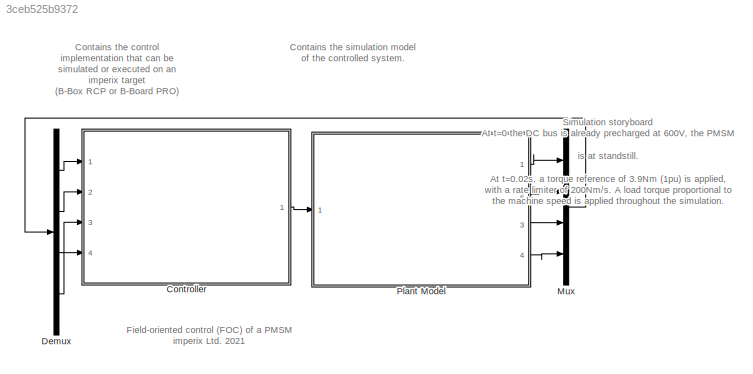
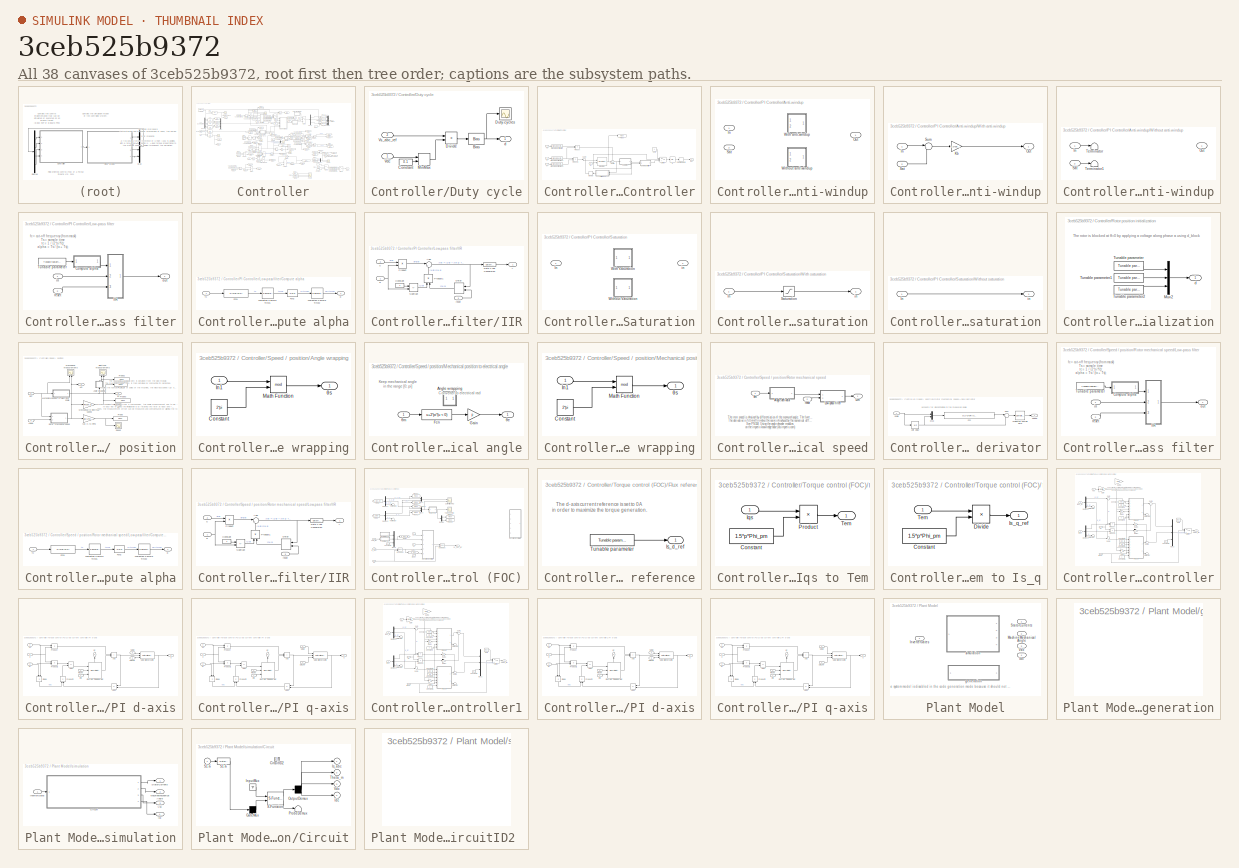
[diagram: thumbnail index - all 38 canvases of the model, root first then tree order]
MODEL slx_3ceb525b9372
KIND model
CONFIG AbsTol = auto
CONFIG EnableMultiTasking = on
CONFIG FixedStep = auto
CONFIG InitFcn = % --- DO NOT REMOVE THIS CODE (ver.3.8.0) ---\n    % check SDK version\n    required_lib_version = 3701.1;\n    required_lib_ver_str = '3.8.0';\n    lib_path = [getenv('IX_SIMULINK_ACG_BB_3') '\simulink\blocks\BoomBox.slx'];\n    if exist(lib_path, 'file')\n        lib_version = str2double(Simulink.MDLInfo(lib_path).ModelVersion); % fullpath to avoid getting shadowing files\n        if lib_version < requ...<+1822ch>
CONFIG MaxStep = auto
CONFIG MinStep = auto
CONFIG PostLoadFcn = % --- DO NOT REMOVE THIS CODE (ver.3.8.0) ---\n    % change the execution mode of simulink depending on the radio button:\n    if(strcmp('Automated Code Generation',get_param(find_system(bdroot,'BlockDialogParams','kb0101'),'SLMODE')))\n        assignin('base', 'SIMULINK_MODE', 1);\n    else\n        assignin('base', 'SIMULINK_MODE', 0);\n    end\n\n    Model_PostLoadFcn(bdroot);\n% --- PLACE YOUR CODE BEL...<+18ch>
CONFIG PreLoadFcn = % --- DO NOT REMOVE THIS CODE (ver.3.8.0) ---\n    % create Simulink variants\n    if not(exist('variant_simulation', 'var'))\n        variant_simulation = Simulink.Variant('SIMULINK_MODE==0');\n    end\n    if not(exist('variant_generation', 'var'))\n        variant_generation = Simulink.Variant('SIMULINK_MODE==1');\n    end\n\n    % check SDK version\n    required_lib_version = 3701.1;\n    required_lib_ve...<+2542ch>
CONFIG RelTol = 1e-3
CONFIG SampleTimeConstraint = Unconstrained
CONFIG SolverName = VariableStepAuto
CONFIG StartTime = 0.0
CONFIG StopTime = 4
WORKSPACE source: mxarray member
WORKSPACE CTRLPERIOD = 5e-05
WORKSPACE TSAMPLE = 2e-06
WORKSPACE global_CLK_number = 0
WORKSPACE global_INT_number = 1
WORKSPACE global_SVM_instance_id = 0
WORKSPACE global_can_baud_rate = '1000000'
WORKSPACE global_comp_time = 0.2
WORKSPACE global_cycle_delay = 0
WORKSPACE global_ip_addresses: object (value not decoded)
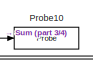
[diagram: Controller - part 1/4, top center region]
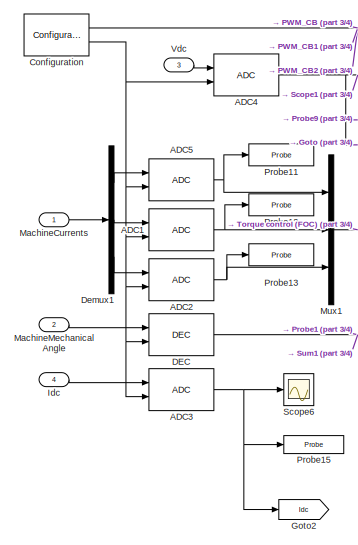
[diagram: Controller - part 2/4, top left region]
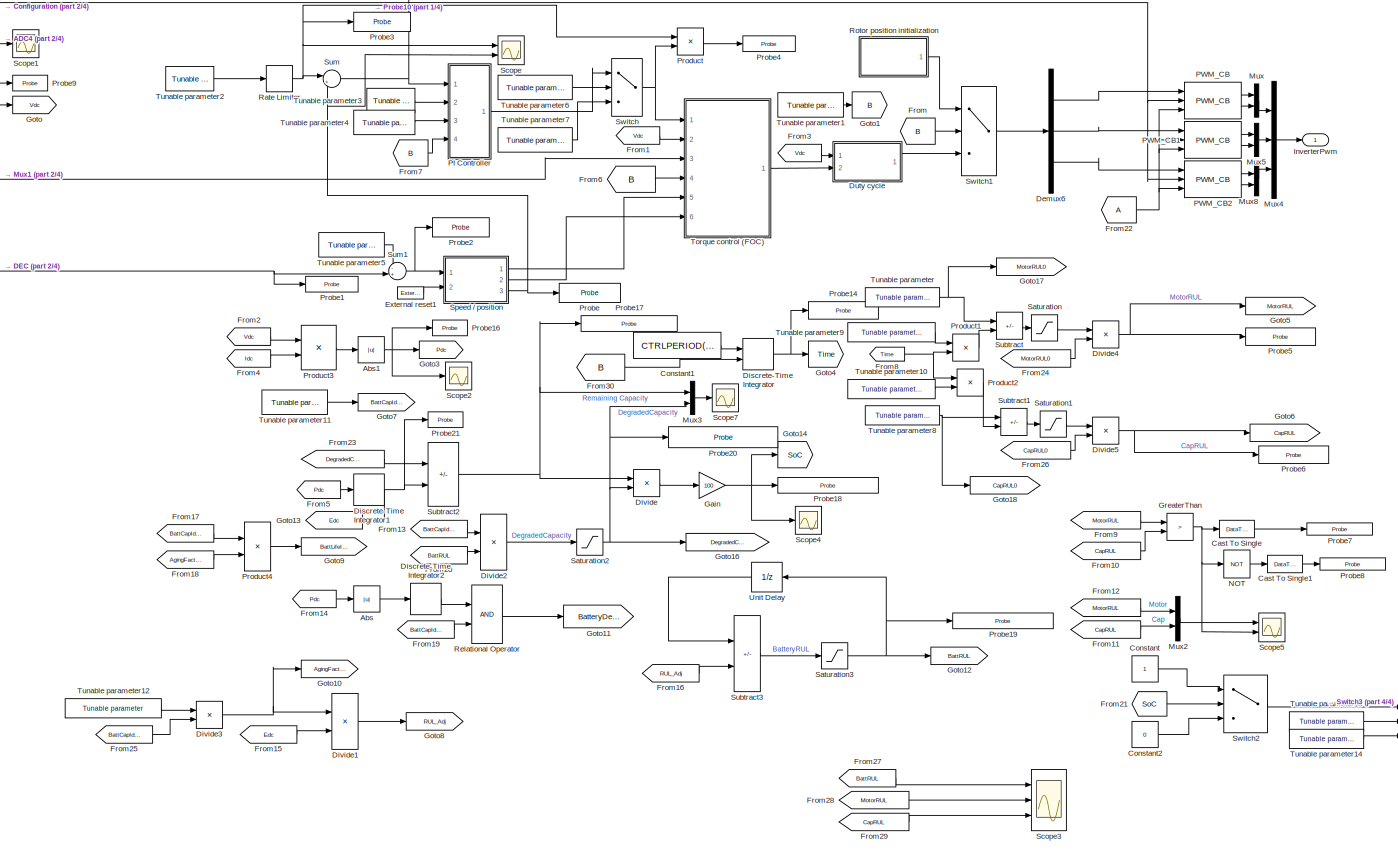
[diagram: Controller - part 3/4, most of the canvas]
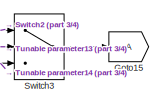
[diagram: Controller - part 4/4, bottom right region]
BLOCK [SubSystem] Controller
  Ports = [4, 1]
  RequestExecContextInheritance = off
BLOCK [Reference] Controller/ADC1  REF=BoomBox/ADC
  Ports = [2, 1]
  SourceBlock = BoomBox/ADC
  SourceProductName = imperix blockset
  SourceType = ADC
BLOCK [Reference] Controller/ADC2  REF=BoomBox/ADC
  Ports = [2, 1]
  SourceBlock = BoomBox/ADC
  SourceProductName = imperix blockset
  SourceType = ADC
BLOCK [Reference] Controller/ADC3  REF=BoomBox/ADC
  Ports = [2, 1]
  SourceBlock = BoomBox/ADC
  SourceProductName = imperix blockset
  SourceType = ADC
BLOCK [Reference] Controller/ADC4  REF=BoomBox/ADC
  Ports = [2, 1]
  SourceBlock = BoomBox/ADC
  SourceProductName = imperix blockset
  SourceType = ADC
BLOCK [Reference] Controller/ADC5  REF=BoomBox/ADC
  Ports = [2, 1]
  SourceBlock = BoomBox/ADC
  SourceProductName = imperix blockset
  SourceType = ADC
BLOCK [Abs] Controller/Abs
  SaturateOnIntegerOverflow = off
BLOCK [Abs] Controller/Abs1
  Commented = through
  SaturateOnIntegerOverflow = off
BLOCK [DataTypeConversion] Controller/Cast To Single
  OutDataTypeStr = single
  RndMeth = Floor
  SaturateOnIntegerOverflow = off
BLOCK [DataTypeConversion] Controller/Cast To Single1
  OutDataTypeStr = single
  RndMeth = Floor
  SaturateOnIntegerOverflow = off
BLOCK [Reference] Controller/Configuration  REF=BoomBox/Configuration
  Description = Please leave the Priority (below parameter) to maximum negative to ensure that this block is always executed first.
  Ports = [0, 2]
  Priority = -99999
  SourceBlock = BoomBox/Configuration
  SourceProductName = imperix blockset
  SourceType = Configuration
BLOCK [Constant] Controller/Constant
  OutDataTypeStr = single
BLOCK [Constant] Controller/Constant1
  Value = CTRLPERIOD(1)
BLOCK [Constant] Controller/Constant2
  OutDataTypeStr = single
  Value = 0
BLOCK [Reference] Controller/DEC  REF=BoomBox/DEC
  Ports = [2, 1]
  SourceBlock = BoomBox/DEC
  SourceProductName = imperix blockset
  SourceType = DEC
BLOCK [Demux] Controller/Demux1
  Outputs = 3
  Ports = [1, 3]
BLOCK [Demux] Controller/Demux6
  Outputs = 3
  Ports = [1, 3]
BLOCK [DiscreteIntegrator] Controller/Discrete-Time Integrator
  ExternalReset = level
  ICPrevOutput = DiscIntNeverNeededParam
  ICPrevScaledInput = DiscIntNeverNeededParam
  InitialConditionSetting = Auto
  IntegratorMethod = Integration: Backward Euler
  Ports = [2, 1]
  SampleTime = CTRLPERIOD
  gainval = 1/CTRLPERIOD(1)
BLOCK [DiscreteIntegrator] Controller/Discrete-Time Integrator1
  ICPrevOutput = DiscIntNeverNeededParam
  ICPrevScaledInput = DiscIntNeverNeededParam
  InitialConditionSetting = Auto
  IntegratorMethod = Integration: Backward Euler
  OutDataTypeStr = single
  Ports = [1, 1]
  SampleTime = CTRLPERIOD
  gainval = 1
BLOCK [DiscreteIntegrator] Controller/Discrete-Time Integrator2
  ICPrevOutput = DiscIntNeverNeededParam
  ICPrevScaledInput = DiscIntNeverNeededParam
  InitialConditionSetting = Auto
  IntegratorMethod = Integration: Backward Euler
  OutDataTypeStr = single
  Ports = [1, 1]
  SampleTime = CTRLPERIOD
  gainval = 1/CTRLPERIOD(1)
BLOCK [Product] Controller/Divide
  Inputs = */
  Ports = [2, 1]
BLOCK [Product] Controller/Divide1
  Inputs = **
  Ports = [2, 1]
BLOCK [Product] Controller/Divide2
  Inputs = **
  Ports = [2, 1]
BLOCK [Product] Controller/Divide3
  Inputs = */
  Ports = [2, 1]
BLOCK [Product] Controller/Divide4
  Inputs = */
  Ports = [2, 1]
BLOCK [Product] Controller/Divide5
  Inputs = */
  Ports = [2, 1]
BLOCK [SubSystem] Controller/Duty cycle
  Ports = [2, 1]
  RequestExecContextInheritance = off
BLOCK [Bias] Controller/Duty cycle/Bias
  Bias = 0.5
  SaturateOnIntegerOverflow = off
BLOCK [Constant] Controller/Duty cycle/Constant
  OutDataTypeStr = single
  Value = 0.1
BLOCK [Product] Controller/Duty cycle/Divide
  Inputs = */
  Ports = [2, 1]
BLOCK [Scope] Controller/Duty cycle/Duty-cycles
  Floating = off
  NumInputPorts = 1
  Ports = [1]
  ScopeSpecificationString = Simulink.scopes.TimeScopeBlockCfg('CurrentConfiguration', extmgr.ConfigurationSet(extmgr.Configuration('Core','General UI',true),extmgr.Configuration('Core','Source UI',true),extmgr.Configuration('Sources','WiredSimulink',true,'DataLoggingVariableName','ScopeData1'),extmgr.Configuration('Visuals','Time Domain',true,'SerializedDisplays',{struct('MinYLimReal','-0.02208','MaxYLimReal','1.022','YLabel...<+1490ch>
BLOCK [MinMax] Controller/Duty cycle/MinMax
  Function = max
  Inputs = 2
  Ports = [2, 1]
BLOCK [Inport] Controller/Duty cycle/Vdc
BLOCK [Inport] Controller/Duty cycle/Vs_abc_ref
  Port = 2
BLOCK [Outport] Controller/Duty cycle/d
BLOCK [Reference] Controller/External reset1  REF=BoomBox/External reset
  Ports = [0, 1]
  SourceBlock = BoomBox/External reset
  SourceProductName = imperix blockset
  SourceType = External reset
BLOCK [From] Controller/From
  GotoTag = B
BLOCK [From] Controller/From1
  GotoTag = Vdc
BLOCK [From] Controller/From10
  GotoTag = CapRUL
BLOCK [From] Controller/From11
  GotoTag = CapRUL
BLOCK [From] Controller/From12
  GotoTag = MotorRUL
BLOCK [From] Controller/From13
  GotoTag = BattCapIdeal
BLOCK [From] Controller/From14
  GotoTag = Pdc
BLOCK [From] Controller/From15
  GotoTag = Edc
BLOCK [From] Controller/From16
  GotoTag = RUL_Adj
BLOCK [From] Controller/From17
  GotoTag = BattCapIdeal
BLOCK [From] Controller/From18
  GotoTag = AgingFactor
BLOCK [From] Controller/From19
  GotoTag = BattCapIdeal
BLOCK [From] Controller/From2
  GotoTag = Vdc
BLOCK [From] Controller/From20
  GotoTag = BattRUL
BLOCK [From] Controller/From21
  GotoTag = SoC
BLOCK [From] Controller/From22
BLOCK [From] Controller/From23
  GotoTag = DegradedCapacity
BLOCK [From] Controller/From24
  GotoTag = MotorRUL0
BLOCK [From] Controller/From25
  GotoTag = BattCapIdeal
BLOCK [From] Controller/From26
  GotoTag = CapRUL0
BLOCK [From] Controller/From27
  GotoTag = BattRUL
BLOCK [From] Controller/From28
  GotoTag = MotorRUL
BLOCK [From] Controller/From29
  GotoTag = CapRUL
BLOCK [From] Controller/From3
  GotoTag = Vdc
BLOCK [From] Controller/From30
  GotoTag = B
BLOCK [From] Controller/From4
  GotoTag = Idc
BLOCK [From] Controller/From5
  GotoTag = Pdc
BLOCK [From] Controller/From6
  GotoTag = B
BLOCK [From] Controller/From7
  GotoTag = B
BLOCK [From] Controller/From8
  GotoTag = Time
BLOCK [From] Controller/From9
  GotoTag = MotorRUL
BLOCK [Gain] Controller/Gain
  Gain = 100
  OutDataTypeStr = single
  ParamDataTypeStr = single
BLOCK [Goto] Controller/Goto
  GotoTag = Vdc
BLOCK [Goto] Controller/Goto1
  GotoTag = B
BLOCK [Goto] Controller/Goto10
  GotoTag = AgingFactor
BLOCK [Goto] Controller/Goto11
  GotoTag = BatteryDead
BLOCK [Goto] Controller/Goto12
  GotoTag = BattRUL
BLOCK [Goto] Controller/Goto13
  GotoTag = Edc
  NameLocation = top
BLOCK [Goto] Controller/Goto14
  GotoTag = SoC
BLOCK [Goto] Controller/Goto15
BLOCK [Goto] Controller/Goto16
  GotoTag = DegradedCapacity
BLOCK [Goto] Controller/Goto17
  GotoTag = MotorRUL0
BLOCK [Goto] Controller/Goto18
  GotoTag = CapRUL0
BLOCK [Goto] Controller/Goto2
  GotoTag = Idc
BLOCK [Goto] Controller/Goto3
  GotoTag = Pdc
BLOCK [Goto] Controller/Goto4
  GotoTag = Time
BLOCK [Goto] Controller/Goto5
  GotoTag = MotorRUL
BLOCK [Goto] Controller/Goto6
  GotoTag = CapRUL
BLOCK [Goto] Controller/Goto7
  GotoTag = BattCapIdeal
BLOCK [Goto] Controller/Goto8
  GotoTag = RUL_Adj
BLOCK [Goto] Controller/Goto9
  GotoTag = BattLifeInit
BLOCK [RelationalOperator] Controller/GreaterThan
  InputSameDT = off
  Operator = >
  OutDataTypeStr = boolean
  Ports = [2, 1]
  RndMeth = Simplest
BLOCK [Inport] Controller/Idc
  Port = 4
BLOCK [Outport] Controller/InverterPwm
BLOCK [Inport] Controller/MachineCurrents
BLOCK [Inport] Controller/MachineMechanicalAngle
  Port = 2
BLOCK [Mux] Controller/Mux
  DisplayOption = bar
  Inputs = 2
  Ports = [2, 1]
BLOCK [Mux] Controller/Mux1
  DisplayOption = bar
  Inputs = 3
  Ports = [3, 1]
BLOCK [Mux] Controller/Mux2
  DisplayOption = bar
  Inputs = 2
  Ports = [2, 1]
BLOCK [Mux] Controller/Mux3
  DisplayOption = bar
  Inputs = 2
  Ports = [2, 1]
BLOCK [Mux] Controller/Mux4
  DisplayOption = bar
  Inputs = 3
  Ports = [3, 1]
BLOCK [Mux] Controller/Mux5
  DisplayOption = bar
  Inputs = 2
  Ports = [2, 1]
BLOCK [Mux] Controller/Mux8
  DisplayOption = bar
  Inputs = 2
  Ports = [2, 1]
BLOCK [Logic] Controller/NOT
  AllPortsSameDT = off
  IconShape = distinctive
  Operator = NOT
  OutDataTypeStr = boolean
  Ports = [1, 1]
BLOCK [SubSystem] Controller/PI Controller
  Ports = [4, 1]
  RequestExecContextInheritance = off
BLOCK [SubSystem] Controller/PI Controller/Anti-windup
  LabelModeActiveChoice = WITH_ANTI_WINDUP
  Ports = [2, 1]
  RequestExecContextInheritance = off
  Variant = on
  VariantControlMode = label
BLOCK [Inport] Controller/PI Controller/Anti-windup/In
BLOCK [Outport] Controller/PI Controller/Anti-windup/Out
BLOCK [Inport] Controller/PI Controller/Anti-windup/Sat
  Port = 2
BLOCK [SubSystem] Controller/PI Controller/Anti-windup/With anti-windup
  Ports = [2, 1]
  RequestExecContextInheritance = off
  VariantControl = WITH_ANTI_WINDUP
BLOCK [Inport] Controller/PI Controller/Anti-windup/With anti-windup/In
BLOCK [Gain] Controller/PI Controller/Anti-windup/With anti-windup/Kb
  Gain = 0.1*sqrt(PI_s.Kp*PI_s.Ki)
  NameLocation = top
  SaturateOnIntegerOverflow = on
BLOCK [Outport] Controller/PI Controller/Anti-windup/With anti-windup/Out
BLOCK [Inport] Controller/PI Controller/Anti-windup/With anti-windup/Sat
  Port = 2
BLOCK [Sum] Controller/PI Controller/Anti-windup/With anti-windup/Sum
  Inputs = |-+
  Ports = [2, 1]
BLOCK [SubSystem] Controller/PI Controller/Anti-windup/Without anti-windup
  Ports = [2, 1]
  RequestExecContextInheritance = off
  VariantControl = WITHOUT_ANTI_WINDUP
BLOCK [Inport] Controller/PI Controller/Anti-windup/Without anti-windup/In
BLOCK [Outport] Controller/PI Controller/Anti-windup/Without anti-windup/Out
BLOCK [Inport] Controller/PI Controller/Anti-windup/Without anti-windup/Sat
  Port = 2
BLOCK [Terminator] Controller/PI Controller/Anti-windup/Without anti-windup/Terminator
BLOCK [Terminator] Controller/PI Controller/Anti-windup/Without anti-windup/Terminator1
BLOCK [InitialCondition] Controller/PI Controller/IC
  Value = 0
BLOCK [Inport] Controller/PI Controller/In
BLOCK [DiscreteIntegrator] Controller/PI Controller/Integrator
  ExternalReset = level
  ICPrevOutput = DiscIntNeverNeededParam
  ICPrevScaledInput = DiscIntNeverNeededParam
  InitialConditionSetting = Auto
  IntegratorMethod = Integration: Trapezoidal
  Ports = [2, 1]
  SampleTime = SamplingTime
BLOCK [Inport] Controller/PI Controller/Ki
  Port = 3
BLOCK [Inport] Controller/PI Controller/Kp
  Port = 2
BLOCK [SubSystem] Controller/PI Controller/Low-pass filter
  Ports = [2, 1]
  RequestExecContextInheritance = off
BLOCK [SubSystem] Controller/PI Controller/Low-pass filter/Compute alpha
  Ports = [1, 1]
  RequestExecContextInheritance = off
BLOCK [Fcn] Controller/PI Controller/Low-pass filter/Compute alpha/Fcn1
  Expr = 1/(2*pi*u(1))
BLOCK [Fcn] Controller/PI Controller/Low-pass filter/Compute alpha/Fcn2
  Expr = 1/u(1)
BLOCK [SampleTimeMath] Controller/PI Controller/Low-pass filter/Compute alpha/Weighted Sample Time1
BLOCK [SampleTimeMath] Controller/PI Controller/Low-pass filter/Compute alpha/Weighted Sample Time2
  TsampMathOp = *
BLOCK [Inport] Controller/PI Controller/Low-pass filter/Compute alpha/fc
BLOCK [Outport] Controller/PI Controller/Low-pass filter/Compute alpha/α
BLOCK [SubSystem] Controller/PI Controller/Low-pass filter/IIR
  Ports = [3, 1]
  RequestExecContextInheritance = off
BLOCK [Sum] Controller/PI Controller/Low-pass filter/IIR/Add
  AccumDataTypeStr = Inherit: Same as first input
  Inputs = |++
  NameLocation = top
  Ports = [2, 1]
BLOCK [Constant] Controller/PI Controller/Low-pass filter/IIR/Constant
  OutDataTypeStr = Inherit: Inherit via back propagation
BLOCK [DataTypeConversion] Controller/PI Controller/Low-pass filter/IIR/Data Type Conversion
  OutDataTypeStr = single
  RndMeth = Floor
  SaturateOnIntegerOverflow = off
BLOCK [Delay] Controller/PI Controller/Low-pass filter/IIR/Delay
  DelayLength = 1
  ExternalReset = Level hold
  InputPortMap = u0,r5
  NameLocation = top
  Ports = [2, 1]
BLOCK [Product] Controller/PI Controller/Low-pass filter/IIR/Product
  Ports = [2, 1]
BLOCK [Product] Controller/PI Controller/Low-pass filter/IIR/Product1
  NameLocation = right
  Ports = [2, 1]
BLOCK [Sum] Controller/PI Controller/Low-pass filter/IIR/Subtract
  IconShape = rectangular
  Inputs = +-
  Ports = [2, 1]
BLOCK [Inport] Controller/PI Controller/Low-pass filter/IIR/reset
  Port = 3
BLOCK [Inport] Controller/PI Controller/Low-pass filter/IIR/u
  NameLocation = top
  Port = 2
BLOCK [Outport] Controller/PI Controller/Low-pass filter/IIR/y
  NameLocation = top
BLOCK [Inport] Controller/PI Controller/Low-pass filter/IIR/α
  NameLocation = top
BLOCK [Reference] Controller/PI Controller/Low-pass filter/Tunable parameter  REF=BoomBox/Tunable parameter
  Ports = [0, 1]
  SourceBlock = BoomBox/Tunable parameter
  SourceProductName = imperix blockset
  SourceType = Tunable parameter
BLOCK [Inport] Controller/PI Controller/Low-pass filter/in
BLOCK [Outport] Controller/PI Controller/Low-pass filter/out
BLOCK [Inport] Controller/PI Controller/Low-pass filter/reset
  Port = 2
BLOCK [Memory] Controller/PI Controller/Memory
BLOCK [Outport] Controller/PI Controller/Out
BLOCK [Reference] Controller/PI Controller/Probe  REF=BoomBox/Probe
  Ports = [1]
  SourceBlock = BoomBox/Probe
  SourceProductName = imperix blockset
  SourceType = Probe
BLOCK [Product] Controller/PI Controller/Product
  Ports = [2, 1]
BLOCK [Product] Controller/PI Controller/Product1
  Ports = [2, 1]
BLOCK [SubSystem] Controller/PI Controller/Saturation
  LabelModeActiveChoice = WITH_SATURATION
  Ports = [1, 1]
  RequestExecContextInheritance = off
  Variant = on
  VariantControlMode = label
BLOCK [Inport] Controller/PI Controller/Saturation/In
BLOCK [SubSystem] Controller/PI Controller/Saturation/With saturation
  Ports = [1, 1]
  RequestExecContextInheritance = off
  VariantControl = WITH_SATURATION
BLOCK [Inport] Controller/PI Controller/Saturation/With saturation/In
BLOCK [Saturate] Controller/PI Controller/Saturation/With saturation/Saturation
  LinearizeAsGain = off
  LowerLimit = -14
  UpperLimit = 14
BLOCK [Outport] Controller/PI Controller/Saturation/With saturation/in
BLOCK [SubSystem] Controller/PI Controller/Saturation/Without saturation
  Ports = [1, 1]
  RequestExecContextInheritance = off
  VariantControl = WITHOUT_SATURATION
BLOCK [Inport] Controller/PI Controller/Saturation/Without saturation/In
BLOCK [Outport] Controller/PI Controller/Saturation/Without saturation/in
BLOCK [Outport] Controller/PI Controller/Saturation/in
BLOCK [SignalSpecification] Controller/PI Controller/Signal Specification
  SampleTime = SamplingTime
BLOCK [SignalSpecification] Controller/PI Controller/Signal Specification1
  SampleTime = SamplingTime
BLOCK [SignalSpecification] Controller/PI Controller/Signal Specification2
  SampleTime = SamplingTime
BLOCK [Sum] Controller/PI Controller/Sum4
  Inputs = |++
  Ports = [2, 1]
BLOCK [Sum] Controller/PI Controller/Sum5
  Inputs = ++|
  Ports = [2, 1]
BLOCK [Switch] Controller/PI Controller/Switch
  Criteria = u2 > Threshold
  InputSameDT = off
  SaturateOnIntegerOverflow = off
BLOCK [Constant] Controller/PI Controller/Zero
  OutDataTypeStr = Inherit: Inherit via back propagation
  Value = 0
BLOCK [ZeroOrderHold] Controller/PI Controller/Zero-Order Hold
  SampleTime = CTRLPERIOD
BLOCK [Inport] Controller/PI Controller/rst
  Port = 4
BLOCK [Reference] Controller/PWM_CB  REF=BoomBox/PWM_CB
  Ports = [3, 2]
  SourceBlock = BoomBox/PWM_CB
  SourceProductName = imperix blockset
  SourceType = PWM
BLOCK [Reference] Controller/PWM_CB1  REF=BoomBox/PWM_CB
  Ports = [3, 2]
  SourceBlock = BoomBox/PWM_CB
  SourceProductName = imperix blockset
  SourceType = PWM
BLOCK [Reference] Controller/PWM_CB2  REF=BoomBox/PWM_CB
  Ports = [3, 2]
  SourceBlock = BoomBox/PWM_CB
  SourceProductName = imperix blockset
  SourceType = PWM
BLOCK [Reference] Controller/Probe  REF=BoomBox/Probe
  Ports = [1]
  SourceBlock = BoomBox/Probe
  SourceProductName = imperix blockset
  SourceType = Probe
BLOCK [Reference] Controller/Probe1  REF=BoomBox/Probe
  Ports = [1]
  SourceBlock = BoomBox/Probe
  SourceProductName = imperix blockset
  SourceType = Probe
BLOCK [Reference] Controller/Probe10  REF=BoomBox/Probe
  Ports = [1]
  SourceBlock = BoomBox/Probe
  SourceProductName = imperix blockset
  SourceType = Probe
BLOCK [Reference] Controller/Probe11  REF=BoomBox/Probe
  Ports = [1]
  SourceBlock = BoomBox/Probe
  SourceProductName = imperix blockset
  SourceType = Probe
BLOCK [Reference] Controller/Probe12  REF=BoomBox/Probe
  Ports = [1]
  SourceBlock = BoomBox/Probe
  SourceProductName = imperix blockset
  SourceType = Probe
BLOCK [Reference] Controller/Probe13  REF=BoomBox/Probe
  Ports = [1]
  SourceBlock = BoomBox/Probe
  SourceProductName = imperix blockset
  SourceType = Probe
BLOCK [Reference] Controller/Probe14  REF=BoomBox/Probe
  Ports = [1]
  SourceBlock = BoomBox/Probe
  SourceProductName = imperix blockset
  SourceType = Probe
BLOCK [Reference] Controller/Probe15  REF=BoomBox/Probe
  Ports = [1]
  SourceBlock = BoomBox/Probe
  SourceProductName = imperix blockset
  SourceType = Probe
BLOCK [Reference] Controller/Probe16  REF=BoomBox/Probe
  Ports = [1]
  SourceBlock = BoomBox/Probe
  SourceProductName = imperix blockset
  SourceType = Probe
BLOCK [Reference] Controller/Probe17  REF=BoomBox/Probe
  Ports = [1]
  SourceBlock = BoomBox/Probe
  SourceProductName = imperix blockset
  SourceType = Probe
BLOCK [Reference] Controller/Probe18  REF=BoomBox/Probe
  Ports = [1]
  SourceBlock = BoomBox/Probe
  SourceProductName = imperix blockset
  SourceType = Probe
BLOCK [Reference] Controller/Probe19  REF=BoomBox/Probe
  Ports = [1]
  SourceBlock = BoomBox/Probe
  SourceProductName = imperix blockset
  SourceType = Probe
BLOCK [Reference] Controller/Probe2  REF=BoomBox/Probe
  Ports = [1]
  SourceBlock = BoomBox/Probe
  SourceProductName = imperix blockset
  SourceType = Probe
BLOCK [Reference] Controller/Probe20  REF=BoomBox/Probe
  Ports = [1]
  SourceBlock = BoomBox/Probe
  SourceProductName = imperix blockset
  SourceType = Probe
BLOCK [Reference] Controller/Probe21  REF=BoomBox/Probe
  Ports = [1]
  SourceBlock = BoomBox/Probe
  SourceProductName = imperix blockset
  SourceType = Probe
BLOCK [Reference] Controller/Probe3  REF=BoomBox/Probe
  Ports = [1]
  SourceBlock = BoomBox/Probe
  SourceProductName = imperix blockset
  SourceType = Probe
BLOCK [Reference] Controller/Probe4  REF=BoomBox/Probe
  Ports = [1]
  SourceBlock = BoomBox/Probe
  SourceProductName = imperix blockset
  SourceType = Probe
BLOCK [Reference] Controller/Probe5  REF=BoomBox/Probe
  Ports = [1]
  SourceBlock = BoomBox/Probe
  SourceProductName = imperix blockset
  SourceType = Probe
BLOCK [Reference] Controller/Probe6  REF=BoomBox/Probe
  Ports = [1]
  SourceBlock = BoomBox/Probe
  SourceProductName = imperix blockset
  SourceType = Probe
BLOCK [Reference] Controller/Probe7  REF=BoomBox/Probe
  Ports = [1]
  SourceBlock = BoomBox/Probe
  SourceProductName = imperix blockset
  SourceType = Probe
BLOCK [Reference] Controller/Probe8  REF=BoomBox/Probe
  Ports = [1]
  SourceBlock = BoomBox/Probe
  SourceProductName = imperix blockset
  SourceType = Probe
BLOCK [Reference] Controller/Probe9  REF=BoomBox/Probe
  Ports = [1]
  SourceBlock = BoomBox/Probe
  SourceProductName = imperix blockset
  SourceType = Probe
BLOCK [Product] Controller/Product
  Ports = [2, 1]
BLOCK [Product] Controller/Product1
  Ports = [2, 1]
BLOCK [Product] Controller/Product2
  Ports = [2, 1]
BLOCK [Product] Controller/Product3
  Ports = [2, 1]
BLOCK [Product] Controller/Product4
  Ports = [2, 1]
BLOCK [RateLimiter] Controller/Rate Limiter
  FallingSlewLimit = -25
  LinearizeAsGain = off
  RisingSlewLimit = 100
  SampleTimeMode = inherited
BLOCK [RelationalOperator] Controller/Relational Operator
  InputSameDT = off
  OutDataTypeStr = boolean
  Ports = [2, 1]
  RndMeth = Simplest
BLOCK [SubSystem] Controller/Rotor position initialization
  NameLocation = top
  Ports = [0, 1]
  RequestExecContextInheritance = off
BLOCK [Mux] Controller/Rotor position initialization/Mux2
  DisplayOption = bar
  Inputs = [1 1 1]
  Ports = [3, 1]
BLOCK [Reference] Controller/Rotor position initialization/Tunable parameter  REF=BoomBox/Tunable parameter
  Ports = [0, 1]
  SourceBlock = BoomBox/Tunable parameter
  SourceProductName = imperix blockset
  SourceType = Tunable parameter
BLOCK [Reference] Controller/Rotor position initialization/Tunable parameter1  REF=BoomBox/Tunable parameter
  Ports = [0, 1]
  SourceBlock = BoomBox/Tunable parameter
  SourceProductName = imperix blockset
  SourceType = Tunable parameter
BLOCK [Reference] Controller/Rotor position initialization/Tunable parameter2  REF=BoomBox/Tunable parameter
  Ports = [0, 1]
  SourceBlock = BoomBox/Tunable parameter
  SourceProductName = imperix blockset
  SourceType = Tunable parameter
BLOCK [Outport] Controller/Rotor position initialization/d
BLOCK [Saturate] Controller/Saturation
  LowerLimit = 0
  UpperLimit = inf
BLOCK [Saturate] Controller/Saturation1
  LowerLimit = 0
  UpperLimit = inf
BLOCK [Saturate] Controller/Saturation2
  LowerLimit = 0.8*36000
  UpperLimit = 1*36000
BLOCK [Saturate] Controller/Saturation3
  Commented = through
  LowerLimit = 0
  UpperLimit = 1
BLOCK [Scope] Controller/Scope
  Floating = off
  NumInputPorts = 2
  Ports = [2]
  ScopeSpecificationString = Simulink.scopes.TimeScopeBlockCfg('CurrentConfiguration', extmgr.ConfigurationSet(extmgr.Configuration('Core','General UI',true),extmgr.Configuration('Core','Source UI',true),extmgr.Configuration('Sources','WiredSimulink',true,'DataLoggingVariableName','ScopeData1'),extmgr.Configuration('Visuals','Time Domain',true,'SerializedDisplays',{struct('MinYLimReal','-3.2263','MaxYLimReal','29.0367','YLabe...<+1553ch>
BLOCK [Scope] Controller/Scope1
  Floating = off
  NumInputPorts = 1
  Ports = [1]
  ScopeSpecificationString = Simulink.scopes.TimeScopeBlockCfg('CurrentConfiguration', extmgr.ConfigurationSet(extmgr.Configuration('Core','General UI',true),extmgr.Configuration('Core','Source UI',true),extmgr.Configuration('Sources','WiredSimulink',true,'DataLoggingVariableName','ScopeData2'),extmgr.Configuration('Visuals','Time Domain',true,'SerializedDisplays',{struct('MinYLimReal','-50.00000','MaxYLimReal','450.00000','Y...<+1373ch>
BLOCK [Scope] Controller/Scope2
  Floating = off
  NumInputPorts = 1
  Ports = [1]
  ScopeSpecificationString = Simulink.scopes.TimeScopeBlockCfg('CurrentConfiguration', extmgr.ConfigurationSet(extmgr.Configuration('Core','General UI',true),extmgr.Configuration('Core','Source UI',true),extmgr.Configuration('Sources','WiredSimulink',true,'DataLoggingVariableName','ScopeData1'),extmgr.Configuration('Visuals','Time Domain',true,'SerializedDisplays',{struct('MinYLimReal','-4.76158','MaxYLimReal','42.85424','YLa...<+1367ch>
BLOCK [Scope] Controller/Scope3
  Floating = off
  NumInputPorts = 3
  Ports = [3]
  ScopeSpecificationString = Simulink.scopes.TimeScopeBlockCfg('CurrentConfiguration', extmgr.ConfigurationSet(extmgr.Configuration('Core','General UI',true),extmgr.Configuration('Core','Source UI',true),extmgr.Configuration('Sources','WiredSimulink',true,'DataLoggingVariableName','ScopeData2'),extmgr.Configuration('Visuals','Time Domain',true,'SerializedDisplays',{struct('MinYLimReal','0.9929','MaxYLimReal','1.00444','YLabel...<+1458ch>
BLOCK [Scope] Controller/Scope4
  Floating = off
  NumInputPorts = 1
  Ports = [1]
  ScopeSpecificationString = Simulink.scopes.TimeScopeBlockCfg('CurrentConfiguration', extmgr.ConfigurationSet(extmgr.Configuration('Core','General UI',true),extmgr.Configuration('Core','Source UI',true),extmgr.Configuration('Sources','WiredSimulink',true,'DataLoggingVariableName','ScopeData3'),extmgr.Configuration('Visuals','Time Domain',true,'SerializedDisplays',{struct('MinYLimReal','99.9978','MaxYLimReal','100.00024','YLa...<+1469ch>
BLOCK [Scope] Controller/Scope5
  Floating = off
  NumInputPorts = 2
  Ports = [2]
  ScopeSpecificationString = Simulink.scopes.TimeScopeBlockCfg('CurrentConfiguration', extmgr.ConfigurationSet(extmgr.Configuration('Core','General UI',true),extmgr.Configuration('Core','Source UI',true),extmgr.Configuration('Sources','WiredSimulink',true,'DataLoggingVariableName','ScopeData4'),extmgr.Configuration('Visuals','Time Domain',true,'SerializedDisplays',{struct('MinYLimReal','0.9975','MaxYLimReal','1.00028','YLabel...<+2020ch>
BLOCK [Scope] Controller/Scope6
  Floating = off
  NumInputPorts = 1
  Ports = [1]
  ScopeSpecificationString = Simulink.scopes.TimeScopeBlockCfg('CurrentConfiguration', extmgr.ConfigurationSet(extmgr.Configuration('Core','General UI',true),extmgr.Configuration('Core','Source UI',true),extmgr.Configuration('Sources','WiredSimulink',true,'DataLoggingVariableName','ScopeData4'),extmgr.Configuration('Visuals','Time Domain',true,'SerializedDisplays',{struct('MinYLimReal','-0.0119','MaxYLimReal','0.10714','YLabe...<+1386ch>
BLOCK [Scope] Controller/Scope7
  Floating = off
  NumInputPorts = 1
  Ports = [1]
  ScopeSpecificationString = Simulink.scopes.TimeScopeBlockCfg('CurrentConfiguration', extmgr.ConfigurationSet(extmgr.Configuration('Core','General UI',true),extmgr.Configuration('Core','Source UI',true),extmgr.Configuration('Sources','WiredSimulink',true,'DataLoggingVariableName','ScopeData5'),extmgr.Configuration('Visuals','Time Domain',true,'SerializedDisplays',{struct('MinYLimReal','35994.5665','MaxYLimReal','36000.57636'...<+1518ch>
BLOCK [SubSystem] Controller/Speed // position
  NameLocation = top
  Ports = [2, 3]
  RequestExecContextInheritance = off
BLOCK [Outport] Controller/Speed // position/ ωm
  Port = 3
BLOCK [Outport] Controller/Speed // position/ ωs
BLOCK [SubSystem] Controller/Speed // position/Angle wrapping
  NameLocation = left
  Ports = [1, 1]
  RequestExecContextInheritance = off
  ShowPortLabels = none
BLOCK [Constant] Controller/Speed // position/Angle wrapping/Constant
  OutDataTypeStr = single
  Value = 2*pi
BLOCK [Inport] Controller/Speed // position/Angle wrapping/In1
BLOCK [Math] Controller/Speed // position/Angle wrapping/Math Function
  Operator = mod
  Ports = [2, 1]
  SignedPower = on
BLOCK [Outport] Controller/Speed // position/Angle wrapping/θs
BLOCK [Scope] Controller/Speed // position/Electrical measurements
  Floating = off
  NameLocation = right
  NumInputPorts = 2
  Ports = [2]
  ScopeSpecificationString = Simulink.scopes.TimeScopeBlockCfg('CurrentConfiguration', extmgr.ConfigurationSet(extmgr.Configuration('Core','General UI',true),extmgr.Configuration('Core','Source UI',true),extmgr.Configuration('Sources','WiredSimulink',true,'DataLoggingVariableName','ScopeData1'),extmgr.Configuration('Visuals','Time Domain',true,'SerializedDisplays',{struct('MinYLimReal','-0.78519','MaxYLimReal','7.06675','YLab...<+2093ch>
BLOCK [Scope] Controller/Speed // position/Mechanical measurements
  Floating = off
  NameLocation = right
  NumInputPorts = 2
  Ports = [2]
  ScopeSpecificationString = Simulink.scopes.TimeScopeBlockCfg('CurrentConfiguration', extmgr.ConfigurationSet(extmgr.Configuration('Core','General UI',true),extmgr.Configuration('Core','Source UI',true),extmgr.Configuration('Sources','WiredSimulink',true,'DataLoggingVariableName','ScopeData2'),extmgr.Configuration('Visuals','Time Domain',true,'SerializedDisplays',{struct('MinYLimReal','-3.92656','MaxYLimReal','3.92395','YLab...<+2062ch>
BLOCK [SubSystem] Controller/Speed // position/Mechanical position to electrical angle
  Ports = [1, 1]
  RequestExecContextInheritance = off
BLOCK [SubSystem] Controller/Speed // position/Mechanical position to electrical angle/Angle wrapping
  Commented = on
  NameLocation = top
  Ports = [1, 1]
  RequestExecContextInheritance = off
  ShowPortLabels = none
BLOCK [Constant] Controller/Speed // position/Mechanical position to electrical angle/Angle wrapping/Constant
  OutDataTypeStr = single
  Value = 2*pi
BLOCK [Inport] Controller/Speed // position/Mechanical position to electrical angle/Angle wrapping/In1
BLOCK [Math] Controller/Speed // position/Mechanical position to electrical angle/Angle wrapping/Math Function
  Operator = mod
  Ports = [2, 1]
  SignedPower = on
BLOCK [Outport] Controller/Speed // position/Mechanical position to electrical angle/Angle wrapping/θs
BLOCK [Fcn] Controller/Speed // position/Mechanical position to electrical angle/Fcn
  Expr = u+2*pi*(u < 0)
BLOCK [Gain] Controller/Speed // position/Mechanical position to electrical angle/Gain
  Gain = p
BLOCK [Outport] Controller/Speed // position/Mechanical position to electrical angle/θe
BLOCK [Inport] Controller/Speed // position/Mechanical position to electrical angle/θm
BLOCK [Gain] Controller/Speed // position/Mechanical to electrical speed
  Gain = Pmsm.p
BLOCK [Reference] Controller/Speed // position/Probe  REF=BoomBox/Probe
  Ports = [1]
  SourceBlock = BoomBox/Probe
  SourceProductName = imperix blockset
  SourceType = Probe
BLOCK [Reference] Controller/Speed // position/Probe1  REF=BoomBox/Probe
  Ports = [1]
  SourceBlock = BoomBox/Probe
  SourceProductName = imperix blockset
  SourceType = Probe
BLOCK [Reference] Controller/Speed // position/Probe2  REF=BoomBox/Probe
  Ports = [1]
  SourceBlock = BoomBox/Probe
  SourceProductName = imperix blockset
  SourceType = Probe
BLOCK [Reference] Controller/Speed // position/Probe3  REF=BoomBox/Probe
  Ports = [1]
  SourceBlock = BoomBox/Probe
  SourceProductName = imperix blockset
  SourceType = Probe
BLOCK [SubSystem] Controller/Speed // position/Rotor mechanical speed
  Ports = [2, 1]
  RequestExecContextInheritance = off
BLOCK [SubSystem] Controller/Speed // position/Rotor mechanical speed/Angle derivator
  Ports = [1, 1]
  RequestExecContextInheritance = off
BLOCK [Fcn] Controller/Speed // position/Rotor mechanical speed/Angle derivator/Fcn
  Expr = u(1)+2*pi*((u(1)-u(2))<-pi)-2*pi*((u(1)-u(2)>pi))
BLOCK [Mux] Controller/Speed // position/Rotor mechanical speed/Angle derivator/Mux
  DisplayOption = bar
  Inputs = 2
  Ports = [2, 1]
BLOCK [Sum] Controller/Speed // position/Rotor mechanical speed/Angle derivator/Sum
  Inputs = |+-
  Ports = [2, 1]
BLOCK [UnitDelay] Controller/Speed // position/Rotor mechanical speed/Angle derivator/Unit Delay
  HasFrameUpgradeWarning = on
  SampleTime = CTRLPERIOD(1)
BLOCK [SampleTimeMath] Controller/Speed // position/Rotor mechanical speed/Angle derivator/Weighted Sample Time
  TsampMathOp = /
BLOCK [Inport] Controller/Speed // position/Rotor mechanical speed/Angle derivator/angle
BLOCK [Outport] Controller/Speed // position/Rotor mechanical speed/Angle derivator/speed
BLOCK [SubSystem] Controller/Speed // position/Rotor mechanical speed/Low-pass filter
  Ports = [2, 1]
  RequestExecContextInheritance = off
BLOCK [SubSystem] Controller/Speed // position/Rotor mechanical speed/Low-pass filter/Compute alpha
  Ports = [1, 1]
  RequestExecContextInheritance = off
BLOCK [Fcn] Controller/Speed // position/Rotor mechanical speed/Low-pass filter/Compute alpha/Fcn1
  Expr = 1/(2*pi*u(1))
BLOCK [Fcn] Controller/Speed // position/Rotor mechanical speed/Low-pass filter/Compute alpha/Fcn2
  Expr = 1/u(1)
BLOCK [SampleTimeMath] Controller/Speed // position/Rotor mechanical speed/Low-pass filter/Compute alpha/Weighted Sample Time1
BLOCK [SampleTimeMath] Controller/Speed // position/Rotor mechanical speed/Low-pass filter/Compute alpha/Weighted Sample Time2
  TsampMathOp = *
BLOCK [Inport] Controller/Speed // position/Rotor mechanical speed/Low-pass filter/Compute alpha/fc
BLOCK [Outport] Controller/Speed // position/Rotor mechanical speed/Low-pass filter/Compute alpha/α
BLOCK [SubSystem] Controller/Speed // position/Rotor mechanical speed/Low-pass filter/IIR
  Ports = [3, 1]
  RequestExecContextInheritance = off
BLOCK [Sum] Controller/Speed // position/Rotor mechanical speed/Low-pass filter/IIR/Add
  AccumDataTypeStr = Inherit: Same as first input
  Inputs = |++
  NameLocation = top
  Ports = [2, 1]
BLOCK [Constant] Controller/Speed // position/Rotor mechanical speed/Low-pass filter/IIR/Constant
  OutDataTypeStr = Inherit: Inherit via back propagation
BLOCK [DataTypeConversion] Controller/Speed // position/Rotor mechanical speed/Low-pass filter/IIR/Data Type Conversion
  OutDataTypeStr = single
  RndMeth = Floor
  SaturateOnIntegerOverflow = off
BLOCK [Delay] Controller/Speed // position/Rotor mechanical speed/Low-pass filter/IIR/Delay
  DelayLength = 1
  ExternalReset = Level hold
  InputPortMap = u0,r5
  NameLocation = top
  Ports = [2, 1]
BLOCK [Product] Controller/Speed // position/Rotor mechanical speed/Low-pass filter/IIR/Product
  Ports = [2, 1]
BLOCK [Product] Controller/Speed // position/Rotor mechanical speed/Low-pass filter/IIR/Product1
  NameLocation = right
  Ports = [2, 1]
BLOCK [Sum] Controller/Speed // position/Rotor mechanical speed/Low-pass filter/IIR/Subtract
  IconShape = rectangular
  Inputs = +-
  Ports = [2, 1]
BLOCK [Inport] Controller/Speed // position/Rotor mechanical speed/Low-pass filter/IIR/reset
  Port = 3
BLOCK [Inport] Controller/Speed // position/Rotor mechanical speed/Low-pass filter/IIR/u
  NameLocation = top
  Port = 2
BLOCK [Outport] Controller/Speed // position/Rotor mechanical speed/Low-pass filter/IIR/y
  NameLocation = top
BLOCK [Inport] Controller/Speed // position/Rotor mechanical speed/Low-pass filter/IIR/α
  NameLocation = top
BLOCK [Reference] Controller/Speed // position/Rotor mechanical speed/Low-pass filter/Tunable parameter  REF=BoomBox/Tunable parameter
  Ports = [0, 1]
  SourceBlock = BoomBox/Tunable parameter
  SourceProductName = imperix blockset
  SourceType = Tunable parameter
BLOCK [Inport] Controller/Speed // position/Rotor mechanical speed/Low-pass filter/in
BLOCK [Outport] Controller/Speed // position/Rotor mechanical speed/Low-pass filter/out
BLOCK [Inport] Controller/Speed // position/Rotor mechanical speed/Low-pass filter/reset
  Port = 2
BLOCK [Inport] Controller/Speed // position/Rotor mechanical speed/reset
  Port = 2
BLOCK [Inport] Controller/Speed // position/Rotor mechanical speed/θm
BLOCK [Outport] Controller/Speed // position/Rotor mechanical speed/ωm
BLOCK [Scope] Controller/Speed // position/Speed
  Floating = off
  NumInputPorts = 1
  Ports = [1]
  ScopeSpecificationString = Simulink.scopes.TimeScopeBlockCfg('CurrentConfiguration', extmgr.ConfigurationSet(extmgr.Configuration('Core','General UI',true),extmgr.Configuration('Core','Source UI',true),extmgr.Configuration('Sources','WiredSimulink',true,'DataLoggingVariableName','ScopeData3'),extmgr.Configuration('Visuals','Time Domain',true,'SerializedDisplays',{struct('MinYLimReal','-31.34443','MaxYLimReal','282.09984','Y...<+1492ch>
BLOCK [Gain] Controller/Speed // position/rad //s to RPM
  Gain = 60/(2*pi)
BLOCK [Inport] Controller/Speed // position/reset
  Port = 2
BLOCK [Inport] Controller/Speed // position/θm
BLOCK [Outport] Controller/Speed // position/θs
  Port = 2
BLOCK [Sum] Controller/Subtract
  IconShape = rectangular
  Inputs = +-
  Ports = [2, 1]
BLOCK [Sum] Controller/Subtract1
  IconShape = rectangular
  Inputs = +-
  Ports = [2, 1]
BLOCK [Sum] Controller/Subtract2
  IconShape = rectangular
  Inputs = +-
  Ports = [2, 1]
BLOCK [Sum] Controller/Subtract3
  IconShape = rectangular
  Inputs = +-
  Ports = [2, 1]
BLOCK [Sum] Controller/Sum
  Inputs = |+-
  Ports = [2, 1]
BLOCK [Sum] Controller/Sum1
  Inputs = -+|
  Ports = [2, 1]
BLOCK [Switch] Controller/Switch
  Criteria = u2 > Threshold
  InputSameDT = off
  SaturateOnIntegerOverflow = off
BLOCK [Switch] Controller/Switch1
  Criteria = u2 > Threshold
  InputSameDT = off
  SaturateOnIntegerOverflow = off
BLOCK [Switch] Controller/Switch2
  Criteria = u2 > Threshold
  InputSameDT = off
  SaturateOnIntegerOverflow = off
BLOCK [Switch] Controller/Switch3
  Criteria = u2 > Threshold
  InputSameDT = off
  SaturateOnIntegerOverflow = off
BLOCK [SubSystem] Controller/Torque control (FOC)
  Ports = [6, 1]
  RequestExecContextInheritance = off
BLOCK [Constant] Controller/Torque control (FOC)/Constant6
  OutDataTypeStr = single
  Value = 0
BLOCK [Scope] Controller/Torque control (FOC)/Current tracking
  Floating = off
  NumInputPorts = 2
  Ports = [2]
  ScopeSpecificationString = Simulink.scopes.TimeScopeBlockCfg('CurrentConfiguration', extmgr.ConfigurationSet(extmgr.Configuration('Core','General UI',true),extmgr.Configuration('Core','Source UI',true),extmgr.Configuration('Sources','WiredSimulink',true,'DataLoggingVariableName','ScopeData4'),extmgr.Configuration('Visuals','Time Domain',true,'SerializedDisplays',{struct('MinYLimReal','-0.00354','MaxYLimReal','0.00303','YLab...<+2155ch>
BLOCK [Demux] Controller/Torque control (FOC)/Demux
  NameLocation = top
  Outputs = 2
  Ports = [1, 2]
BLOCK [Demux] Controller/Torque control (FOC)/Demux1
  Outputs = 3
  Ports = [1, 3]
BLOCK [Demux] Controller/Torque control (FOC)/Demux2
  Outputs = 3
  Ports = [1, 3]
BLOCK [SubSystem] Controller/Torque control (FOC)/Flux reference
  NameLocation = top
  Ports = [0, 1]
  RequestExecContextInheritance = off
BLOCK [Outport] Controller/Torque control (FOC)/Flux reference/Is_d_ref
BLOCK [Reference] Controller/Torque control (FOC)/Flux reference/Tunable parameter  REF=BoomBox/Tunable parameter
  Ports = [0, 1]
  SourceBlock = BoomBox/Tunable parameter
  SourceProductName = imperix blockset
  SourceType = Tunable parameter
BLOCK [From] Controller/Torque control (FOC)/From2
  GotoTag = Is_dq0_ref
BLOCK [From] Controller/Torque control (FOC)/From3
  GotoTag = Is_dq0
BLOCK [Goto] Controller/Torque control (FOC)/Goto1
  GotoTag = Is_dq0_ref
BLOCK [Goto] Controller/Torque control (FOC)/Goto2
  GotoTag = Is_dq0
BLOCK [SubSystem] Controller/Torque control (FOC)/Iqs to Tem
  NameLocation = top
  Ports = [1, 1]
  RequestExecContextInheritance = off
BLOCK [Constant] Controller/Torque control (FOC)/Iqs to Tem/Constant
  OutDataTypeStr = single
  Value = 1.5*p*Phi_pm
BLOCK [Inport] Controller/Torque control (FOC)/Iqs to Tem/Iqs
BLOCK [Product] Controller/Torque control (FOC)/Iqs to Tem/Product
  Ports = [2, 1]
BLOCK [Outport] Controller/Torque control (FOC)/Iqs to Tem/Tem
BLOCK [Inport] Controller/Torque control (FOC)/Is_abc
  Port = 3
BLOCK [Mux] Controller/Torque control (FOC)/Mux3
  DisplayOption = bar
  Inputs = 2
  Ports = [2, 1]
BLOCK [Mux] Controller/Torque control (FOC)/Mux4
  DisplayOption = bar
  Inputs = 2
  Ports = [2, 1]
BLOCK [Mux] Controller/Torque control (FOC)/Mux9
  DisplayOption = bar
  Inputs = [1 1 1]
  Ports = [3, 1]
BLOCK [Reference] Controller/Torque control (FOC)/Probe1  REF=BoomBox/Probe
  Ports = [1]
  SourceBlock = BoomBox/Probe
  SourceProductName = imperix blockset
  SourceType = Probe
BLOCK [Reference] Controller/Torque control (FOC)/Probe2  REF=BoomBox/Probe
  Ports = [1]
  SourceBlock = BoomBox/Probe
  SourceProductName = imperix blockset
  SourceType = Probe
BLOCK [Reference] Controller/Torque control (FOC)/Probe3  REF=BoomBox/Probe
  Ports = [1]
  SourceBlock = BoomBox/Probe
  SourceProductName = imperix blockset
  SourceType = Probe
BLOCK [Reference] Controller/Torque control (FOC)/Probe5  REF=BoomBox/Probe
  Ports = [1]
  SourceBlock = BoomBox/Probe
  SourceProductName = imperix blockset
  SourceType = Probe
BLOCK [Reference] Controller/Torque control (FOC)/Probe7  REF=BoomBox/Probe
  NameLocation = top
  Ports = [1]
  SourceBlock = BoomBox/Probe
  SourceProductName = imperix blockset
  SourceType = Probe
BLOCK [Reference] Controller/Torque control (FOC)/Probe8  REF=BoomBox/Probe
  NameLocation = top
  Ports = [1]
  SourceBlock = BoomBox/Probe
  SourceProductName = imperix blockset
  SourceType = Probe
BLOCK [SubSystem] Controller/Torque control (FOC)/Tem to Is_q
  Ports = [1, 1]
  RequestExecContextInheritance = off
BLOCK [Constant] Controller/Torque control (FOC)/Tem to Is_q/Constant
  OutDataTypeStr = single
  Value = 1.5*p*Phi_pm
BLOCK [Product] Controller/Torque control (FOC)/Tem to Is_q/Divide
  Inputs = */
  Ports = [2, 1]
BLOCK [Outport] Controller/Torque control (FOC)/Tem to Is_q/Is_q_ref
BLOCK [Inport] Controller/Torque control (FOC)/Tem to Is_q/Tem
BLOCK [Inport] Controller/Torque control (FOC)/Tem_ref
BLOCK [Terminator] Controller/Torque control (FOC)/Terminator
BLOCK [Terminator] Controller/Torque control (FOC)/Terminator1
BLOCK [Scope] Controller/Torque control (FOC)/Torque control
  Floating = off
  NumInputPorts = 1
  Ports = [1]
  ScopeSpecificationString = Simulink.scopes.TimeScopeBlockCfg('CurrentConfiguration', extmgr.ConfigurationSet(extmgr.Configuration('Core','General UI',true),extmgr.Configuration('Core','Source UI',true),extmgr.Configuration('Sources','WiredSimulink',true,'DataLoggingVariableName','ScopeData5'),extmgr.Configuration('Visuals','Time Domain',true,'SerializedDisplays',{struct('MinYLimReal','-0.68746','MaxYLimReal','2.79831','YLab...<+1596ch>
BLOCK [Inport] Controller/Torque control (FOC)/Vdc
  Port = 2
BLOCK [Outport] Controller/Torque control (FOC)/Vs_abc_ref
BLOCK [Reference] Controller/Torque control (FOC)/abc to dq0  REF=BoomBox/Transformations/abc to dq0
  Ports = [2, 1]
  SourceBlock = BoomBox/Transformations/abc to dq0
  SourceProductName = imperix blockset
  SourceType = abc to dq0 Transformation
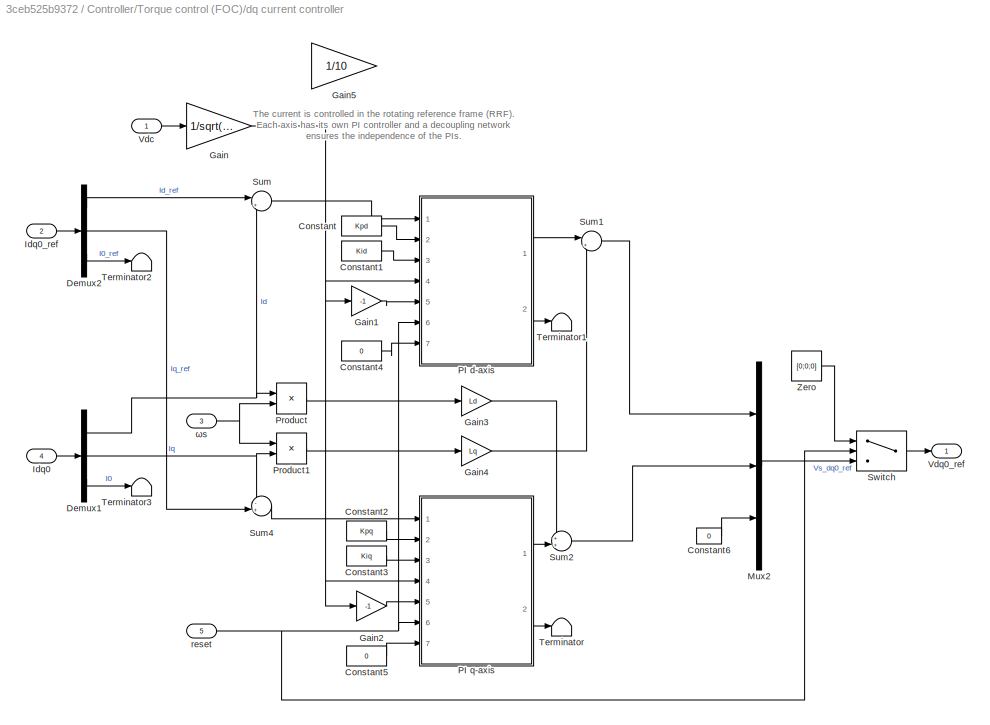
BLOCK [SubSystem] Controller/Torque control (FOC)/dq current controller
  NameLocation = top
  Ports = [5, 1]
  RequestExecContextInheritance = off
BLOCK [Constant] Controller/Torque control (FOC)/dq current controller/Constant
  OutDataTypeStr = single
  Value = Kpd
BLOCK [Constant] Controller/Torque control (FOC)/dq current controller/Constant1
  OutDataTypeStr = single
  Value = Kid
BLOCK [Constant] Controller/Torque control (FOC)/dq current controller/Constant2
  OutDataTypeStr = single
  Value = Kpq
BLOCK [Constant] Controller/Torque control (FOC)/dq current controller/Constant3
  OutDataTypeStr = single
  Value = Kiq
BLOCK [Constant] Controller/Torque control (FOC)/dq current controller/Constant4
  OutDataTypeStr = single
  Value = 0
BLOCK [Constant] Controller/Torque control (FOC)/dq current controller/Constant5
  OutDataTypeStr = single
  Value = 0
BLOCK [Constant] Controller/Torque control (FOC)/dq current controller/Constant6
  OutDataTypeStr = single
  Value = 0
BLOCK [Demux] Controller/Torque control (FOC)/dq current controller/Demux1
  Outputs = 3
  Ports = [1, 3]
BLOCK [Demux] Controller/Torque control (FOC)/dq current controller/Demux2
  Outputs = 3
  Ports = [1, 3]
BLOCK [Gain] Controller/Torque control (FOC)/dq current controller/Gain
  Gain = 1/sqrt(2)
BLOCK [Gain] Controller/Torque control (FOC)/dq current controller/Gain1
  Gain = -1
BLOCK [Gain] Controller/Torque control (FOC)/dq current controller/Gain2
  Gain = -1
BLOCK [Gain] Controller/Torque control (FOC)/dq current controller/Gain3
  Gain = Ld
BLOCK [Gain] Controller/Torque control (FOC)/dq current controller/Gain4
  Gain = Lq
BLOCK [Gain] Controller/Torque control (FOC)/dq current controller/Gain5
  Commented = on
  Gain = 1/10
BLOCK [Inport] Controller/Torque control (FOC)/dq current controller/Idq0
  Port = 4
BLOCK [Inport] Controller/Torque control (FOC)/dq current controller/Idq0_ref
  Port = 2
BLOCK [Mux] Controller/Torque control (FOC)/dq current controller/Mux2
  DisplayOption = bar
  Inputs = 3
  Ports = [3, 1]
BLOCK [SubSystem] Controller/Torque control (FOC)/dq current controller/PI d-axis
  Ports = [7, 2]
  RequestExecContextInheritance = off
BLOCK [Sum] Controller/Torque control (FOC)/dq current controller/PI d-axis/Add
  IconShape = rectangular
  Ports = [2, 1]
BLOCK [Sum] Controller/Torque control (FOC)/dq current controller/PI d-axis/Add1
  IconShape = rectangular
  Inputs = +-
  Ports = [2, 1]
BLOCK [Sum] Controller/Torque control (FOC)/dq current controller/PI d-axis/Add2
  IconShape = rectangular
  Inputs = +-
  Ports = [2, 1]
BLOCK [DiscreteIntegrator] Controller/Torque control (FOC)/dq current controller/PI d-axis/Discrete-Time Integrator
  ExternalReset = level
  ICPrevOutput = DiscIntNeverNeededParam
  ICPrevScaledInput = DiscIntNeverNeededParam
  InitialConditionSetting = Auto
  InitialConditionSource = external
  Ports = [3, 1, 0, 0, 1]
  SampleTime = -1
  ShowStatePort = on
BLOCK [Product] Controller/Torque control (FOC)/dq current controller/PI d-axis/Divide
  Inputs = */
  NameLocation = right
  Ports = [2, 1]
BLOCK [Outport] Controller/Torque control (FOC)/dq current controller/PI d-axis/Int
  NameLocation = right
  Port = 2
BLOCK [Inport] Controller/Torque control (FOC)/dq current controller/PI d-axis/Int0
  Port = 7
BLOCK [Inport] Controller/Torque control (FOC)/dq current controller/PI d-axis/Ki
  Port = 3
BLOCK [Inport] Controller/Torque control (FOC)/dq current controller/PI d-axis/Kp
  Port = 2
BLOCK [Product] Controller/Torque control (FOC)/dq current controller/PI d-axis/Product
  Ports = [2, 1]
BLOCK [Product] Controller/Torque control (FOC)/dq current controller/PI d-axis/Product1
  Ports = [2, 1]
BLOCK [Product] Controller/Torque control (FOC)/dq current controller/PI d-axis/Product2
  NameLocation = right
  Ports = [2, 1]
BLOCK [Inport] Controller/Torque control (FOC)/dq current controller/PI d-axis/Reset
  Port = 6
BLOCK [Inport] Controller/Torque control (FOC)/dq current controller/PI d-axis/SatLow
  Port = 5
BLOCK [Inport] Controller/Torque control (FOC)/dq current controller/PI d-axis/SatUp
  NameLocation = top
  Port = 4
BLOCK [Reference] Controller/Torque control (FOC)/dq current controller/PI d-axis/Saturation Dynamic  REF=simulink/Discontinuities/Saturation
Dynamic
  Ports = [3, 1]
  SourceBlock = simulink/Discontinuities/Saturation\nDynamic
  SourceProductBaseCode = SL
  SourceType = Saturation Dynamic
BLOCK [Inport] Controller/Torque control (FOC)/dq current controller/PI d-axis/e
BLOCK [Outport] Controller/Torque control (FOC)/dq current controller/PI d-axis/u
BLOCK [SubSystem] Controller/Torque control (FOC)/dq current controller/PI q-axis
  Ports = [7, 2]
  RequestExecContextInheritance = off
BLOCK [Sum] Controller/Torque control (FOC)/dq current controller/PI q-axis/Add
  IconShape = rectangular
  Ports = [2, 1]
BLOCK [Sum] Controller/Torque control (FOC)/dq current controller/PI q-axis/Add1
  IconShape = rectangular
  Inputs = +-
  Ports = [2, 1]
BLOCK [Sum] Controller/Torque control (FOC)/dq current controller/PI q-axis/Add2
  IconShape = rectangular
  Inputs = +-
  Ports = [2, 1]
BLOCK [DiscreteIntegrator] Controller/Torque control (FOC)/dq current controller/PI q-axis/Discrete-Time Integrator
  ExternalReset = level
  ICPrevOutput = DiscIntNeverNeededParam
  ICPrevScaledInput = DiscIntNeverNeededParam
  InitialConditionSetting = Auto
  InitialConditionSource = external
  Ports = [3, 1, 0, 0, 1]
  SampleTime = -1
  ShowStatePort = on
BLOCK [Product] Controller/Torque control (FOC)/dq current controller/PI q-axis/Divide
  Inputs = */
  NameLocation = right
  Ports = [2, 1]
BLOCK [Outport] Controller/Torque control (FOC)/dq current controller/PI q-axis/Int
  NameLocation = right
  Port = 2
BLOCK [Inport] Controller/Torque control (FOC)/dq current controller/PI q-axis/Int0
  Port = 7
BLOCK [Inport] Controller/Torque control (FOC)/dq current controller/PI q-axis/Ki
  Port = 3
BLOCK [Inport] Controller/Torque control (FOC)/dq current controller/PI q-axis/Kp
  Port = 2
BLOCK [Product] Controller/Torque control (FOC)/dq current controller/PI q-axis/Product
  Ports = [2, 1]
BLOCK [Product] Controller/Torque control (FOC)/dq current controller/PI q-axis/Product1
  Ports = [2, 1]
BLOCK [Product] Controller/Torque control (FOC)/dq current controller/PI q-axis/Product2
  NameLocation = right
  Ports = [2, 1]
BLOCK [Inport] Controller/Torque control (FOC)/dq current controller/PI q-axis/Reset
  Port = 6
BLOCK [Inport] Controller/Torque control (FOC)/dq current controller/PI q-axis/SatLow
  Port = 5
BLOCK [Inport] Controller/Torque control (FOC)/dq current controller/PI q-axis/SatUp
  Port = 4
BLOCK [Reference] Controller/Torque control (FOC)/dq current controller/PI q-axis/Saturation Dynamic  REF=simulink/Discontinuities/Saturation
Dynamic
  Ports = [3, 1]
  SourceBlock = simulink/Discontinuities/Saturation\nDynamic
  SourceProductBaseCode = SL
  SourceType = Saturation Dynamic
BLOCK [Inport] Controller/Torque control (FOC)/dq current controller/PI q-axis/e
BLOCK [Outport] Controller/Torque control (FOC)/dq current controller/PI q-axis/u
BLOCK [Product] Controller/Torque control (FOC)/dq current controller/Product
  Ports = [2, 1]
BLOCK [Product] Controller/Torque control (FOC)/dq current controller/Product1
  Ports = [2, 1]
BLOCK [Sum] Controller/Torque control (FOC)/dq current controller/Sum
  Inputs = |+-
  Ports = [2, 1]
BLOCK [Sum] Controller/Torque control (FOC)/dq current controller/Sum1
  Inputs = |+-
  Ports = [2, 1]
BLOCK [Sum] Controller/Torque control (FOC)/dq current controller/Sum2
  Inputs = ++|
  Ports = [2, 1]
BLOCK [Sum] Controller/Torque control (FOC)/dq current controller/Sum4
  Inputs = -+|
  Ports = [2, 1]
BLOCK [Switch] Controller/Torque control (FOC)/dq current controller/Switch
  Criteria = u2 > Threshold
  InputSameDT = off
  SaturateOnIntegerOverflow = off
BLOCK [Terminator] Controller/Torque control (FOC)/dq current controller/Terminator
BLOCK [Terminator] Controller/Torque control (FOC)/dq current controller/Terminator1
BLOCK [Terminator] Controller/Torque control (FOC)/dq current controller/Terminator2
BLOCK [Terminator] Controller/Torque control (FOC)/dq current controller/Terminator3
BLOCK [Inport] Controller/Torque control (FOC)/dq current controller/Vdc
BLOCK [Outport] Controller/Torque control (FOC)/dq current controller/Vdq0_ref
BLOCK [Constant] Controller/Torque control (FOC)/dq current controller/Zero
  OutDataTypeStr = Inherit: Inherit via back propagation
  Value = [0;0;0]
BLOCK [Inport] Controller/Torque control (FOC)/dq current controller/reset
  Port = 5
BLOCK [Inport] Controller/Torque control (FOC)/dq current controller/ωs
  Port = 3
BLOCK [SubSystem] Controller/Torque control (FOC)/dq current controller1
  Commented = on
  NameLocation = top
  Ports = [5, 1]
  RequestExecContextInheritance = off
BLOCK [Constant] Controller/Torque control (FOC)/dq current controller1/Constant
  OutDataTypeStr = single
  Value = Kpd
BLOCK [Constant] Controller/Torque control (FOC)/dq current controller1/Constant1
  OutDataTypeStr = single
  Value = Kid
BLOCK [Constant] Controller/Torque control (FOC)/dq current controller1/Constant2
  OutDataTypeStr = single
  Value = Kpq
BLOCK [Constant] Controller/Torque control (FOC)/dq current controller1/Constant3
  OutDataTypeStr = single
  Value = Kiq
BLOCK [Constant] Controller/Torque control (FOC)/dq current controller1/Constant4
  OutDataTypeStr = single
  Value = 0
BLOCK [Constant] Controller/Torque control (FOC)/dq current controller1/Constant5
  OutDataTypeStr = single
  Value = 0
BLOCK [Constant] Controller/Torque control (FOC)/dq current controller1/Constant6
  OutDataTypeStr = single
  Value = 0
BLOCK [Demux] Controller/Torque control (FOC)/dq current controller1/Demux1
  Outputs = 3
  Ports = [1, 3]
BLOCK [Demux] Controller/Torque control (FOC)/dq current controller1/Demux2
  Outputs = 3
  Ports = [1, 3]
BLOCK [Gain] Controller/Torque control (FOC)/dq current controller1/Gain
  Gain = 1/sqrt(2)
BLOCK [Gain] Controller/Torque control (FOC)/dq current controller1/Gain1
  Gain = -1
BLOCK [Gain] Controller/Torque control (FOC)/dq current controller1/Gain2
  Gain = -1
BLOCK [Gain] Controller/Torque control (FOC)/dq current controller1/Gain3
  Gain = Ld
BLOCK [Gain] Controller/Torque control (FOC)/dq current controller1/Gain4
  Gain = Lq
BLOCK [Gain] Controller/Torque control (FOC)/dq current controller1/Gain5
  Commented = on
  Gain = 1/10
BLOCK [Inport] Controller/Torque control (FOC)/dq current controller1/Idq0
  Port = 4
BLOCK [Inport] Controller/Torque control (FOC)/dq current controller1/Idq0_ref
  Port = 2
BLOCK [Mux] Controller/Torque control (FOC)/dq current controller1/Mux2
  DisplayOption = bar
  Inputs = 3
  Ports = [3, 1]
BLOCK [SubSystem] Controller/Torque control (FOC)/dq current controller1/PI d-axis
  Ports = [7, 2]
  RequestExecContextInheritance = off
BLOCK [Sum] Controller/Torque control (FOC)/dq current controller1/PI d-axis/Add
  IconShape = rectangular
  Ports = [2, 1]
BLOCK [Sum] Controller/Torque control (FOC)/dq current controller1/PI d-axis/Add1
  IconShape = rectangular
  Inputs = +-
  Ports = [2, 1]
BLOCK [Sum] Controller/Torque control (FOC)/dq current controller1/PI d-axis/Add2
  IconShape = rectangular
  Inputs = +-
  Ports = [2, 1]
BLOCK [DiscreteIntegrator] Controller/Torque control (FOC)/dq current controller1/PI d-axis/Discrete-Time Integrator
  ExternalReset = level
  ICPrevOutput = DiscIntNeverNeededParam
  ICPrevScaledInput = DiscIntNeverNeededParam
  InitialConditionSetting = Auto
  InitialConditionSource = external
  Ports = [3, 1, 0, 0, 1]
  SampleTime = -1
  ShowStatePort = on
BLOCK [Product] Controller/Torque control (FOC)/dq current controller1/PI d-axis/Divide
  Inputs = */
  NameLocation = right
  Ports = [2, 1]
BLOCK [Outport] Controller/Torque control (FOC)/dq current controller1/PI d-axis/Int
  NameLocation = right
  Port = 2
BLOCK [Inport] Controller/Torque control (FOC)/dq current controller1/PI d-axis/Int0
  Port = 7
BLOCK [Inport] Controller/Torque control (FOC)/dq current controller1/PI d-axis/Ki
  Port = 3
BLOCK [Inport] Controller/Torque control (FOC)/dq current controller1/PI d-axis/Kp
  Port = 2
BLOCK [Product] Controller/Torque control (FOC)/dq current controller1/PI d-axis/Product
  Ports = [2, 1]
BLOCK [Product] Controller/Torque control (FOC)/dq current controller1/PI d-axis/Product1
  Ports = [2, 1]
BLOCK [Product] Controller/Torque control (FOC)/dq current controller1/PI d-axis/Product2
  NameLocation = right
  Ports = [2, 1]
BLOCK [Inport] Controller/Torque control (FOC)/dq current controller1/PI d-axis/Reset
  Port = 6
BLOCK [Inport] Controller/Torque control (FOC)/dq current controller1/PI d-axis/SatLow
  Port = 5
BLOCK [Inport] Controller/Torque control (FOC)/dq current controller1/PI d-axis/SatUp
  NameLocation = top
  Port = 4
BLOCK [Reference] Controller/Torque control (FOC)/dq current controller1/PI d-axis/Saturation Dynamic  REF=simulink/Discontinuities/Saturation
Dynamic
  Ports = [3, 1]
  SourceBlock = simulink/Discontinuities/Saturation\nDynamic
  SourceProductBaseCode = SL
  SourceType = Saturation Dynamic
BLOCK [Inport] Controller/Torque control (FOC)/dq current controller1/PI d-axis/e
BLOCK [Outport] Controller/Torque control (FOC)/dq current controller1/PI d-axis/u
BLOCK [SubSystem] Controller/Torque control (FOC)/dq current controller1/PI q-axis
  Ports = [7, 2]
  RequestExecContextInheritance = off
BLOCK [Sum] Controller/Torque control (FOC)/dq current controller1/PI q-axis/Add
  IconShape = rectangular
  Ports = [2, 1]
BLOCK [Sum] Controller/Torque control (FOC)/dq current controller1/PI q-axis/Add1
  IconShape = rectangular
  Inputs = +-
  Ports = [2, 1]
BLOCK [Sum] Controller/Torque control (FOC)/dq current controller1/PI q-axis/Add2
  IconShape = rectangular
  Inputs = +-
  Ports = [2, 1]
BLOCK [DiscreteIntegrator] Controller/Torque control (FOC)/dq current controller1/PI q-axis/Discrete-Time Integrator
  ExternalReset = level
  ICPrevOutput = DiscIntNeverNeededParam
  ICPrevScaledInput = DiscIntNeverNeededParam
  InitialConditionSetting = Auto
  InitialConditionSource = external
  Ports = [3, 1, 0, 0, 1]
  SampleTime = -1
  ShowStatePort = on
BLOCK [Product] Controller/Torque control (FOC)/dq current controller1/PI q-axis/Divide
  Inputs = */
  NameLocation = right
  Ports = [2, 1]
BLOCK [Outport] Controller/Torque control (FOC)/dq current controller1/PI q-axis/Int
  NameLocation = right
  Port = 2
BLOCK [Inport] Controller/Torque control (FOC)/dq current controller1/PI q-axis/Int0
  Port = 7
BLOCK [Inport] Controller/Torque control (FOC)/dq current controller1/PI q-axis/Ki
  Port = 3
BLOCK [Inport] Controller/Torque control (FOC)/dq current controller1/PI q-axis/Kp
  Port = 2
BLOCK [Product] Controller/Torque control (FOC)/dq current controller1/PI q-axis/Product
  Ports = [2, 1]
BLOCK [Product] Controller/Torque control (FOC)/dq current controller1/PI q-axis/Product1
  Ports = [2, 1]
BLOCK [Product] Controller/Torque control (FOC)/dq current controller1/PI q-axis/Product2
  NameLocation = right
  Ports = [2, 1]
BLOCK [Inport] Controller/Torque control (FOC)/dq current controller1/PI q-axis/Reset
  Port = 6
BLOCK [Inport] Controller/Torque control (FOC)/dq current controller1/PI q-axis/SatLow
  Port = 5
BLOCK [Inport] Controller/Torque control (FOC)/dq current controller1/PI q-axis/SatUp
  Port = 4
BLOCK [Reference] Controller/Torque control (FOC)/dq current controller1/PI q-axis/Saturation Dynamic  REF=simulink/Discontinuities/Saturation
Dynamic
  Ports = [3, 1]
  SourceBlock = simulink/Discontinuities/Saturation\nDynamic
  SourceProductBaseCode = SL
  SourceType = Saturation Dynamic
BLOCK [Inport] Controller/Torque control (FOC)/dq current controller1/PI q-axis/e
BLOCK [Outport] Controller/Torque control (FOC)/dq current controller1/PI q-axis/u
BLOCK [Product] Controller/Torque control (FOC)/dq current controller1/Product
  Ports = [2, 1]
BLOCK [Product] Controller/Torque control (FOC)/dq current controller1/Product1
  Ports = [2, 1]
BLOCK [Sum] Controller/Torque control (FOC)/dq current controller1/Sum
  Inputs = |+-
  Ports = [2, 1]
BLOCK [Sum] Controller/Torque control (FOC)/dq current controller1/Sum1
  Inputs = |+-
  Ports = [2, 1]
BLOCK [Sum] Controller/Torque control (FOC)/dq current controller1/Sum2
  Inputs = ++|
  Ports = [2, 1]
BLOCK [Sum] Controller/Torque control (FOC)/dq current controller1/Sum4
  Inputs = -+|
  Ports = [2, 1]
BLOCK [Switch] Controller/Torque control (FOC)/dq current controller1/Switch
  Criteria = u2 > Threshold
  InputSameDT = off
  SaturateOnIntegerOverflow = off
BLOCK [Terminator] Controller/Torque control (FOC)/dq current controller1/Terminator
BLOCK [Terminator] Controller/Torque control (FOC)/dq current controller1/Terminator1
BLOCK [Terminator] Controller/Torque control (FOC)/dq current controller1/Terminator2
BLOCK [Terminator] Controller/Torque control (FOC)/dq current controller1/Terminator3
BLOCK [Inport] Controller/Torque control (FOC)/dq current controller1/Vdc
BLOCK [Outport] Controller/Torque control (FOC)/dq current controller1/Vdq0_ref
BLOCK [Constant] Controller/Torque control (FOC)/dq current controller1/Zero
  OutDataTypeStr = Inherit: Inherit via back propagation
  Value = [0;0;0]
BLOCK [Inport] Controller/Torque control (FOC)/dq current controller1/reset
  Port = 5
BLOCK [Inport] Controller/Torque control (FOC)/dq current controller1/ωs
  Port = 3
BLOCK [Reference] Controller/Torque control (FOC)/dq0 to abc  REF=BoomBox/Transformations/dq0 to abc
  Ports = [2, 1]
  SourceBlock = BoomBox/Transformations/dq0 to abc
  SourceProductName = imperix blockset
  SourceType = dq0 to abc Transformation
BLOCK [Inport] Controller/Torque control (FOC)/reset
  Port = 4
BLOCK [Inport] Controller/Torque control (FOC)/θs
  Port = 6
BLOCK [Inport] Controller/Torque control (FOC)/ωs
  Port = 5
BLOCK [Reference] Controller/Tunable parameter  REF=BoomBox/Tunable parameter
  Ports = [0, 1]
  SourceBlock = BoomBox/Tunable parameter
  SourceProductName = imperix blockset
  SourceType = Tunable parameter
BLOCK [Reference] Controller/Tunable parameter1  REF=BoomBox/Tunable parameter
  Ports = [0, 1]
  SourceBlock = BoomBox/Tunable parameter
  SourceProductName = imperix blockset
  SourceType = Tunable parameter
BLOCK [Reference] Controller/Tunable parameter10  REF=BoomBox/Tunable parameter
  Ports = [0, 1]
  SourceBlock = BoomBox/Tunable parameter
  SourceProductName = imperix blockset
  SourceType = Tunable parameter
BLOCK [Reference] Controller/Tunable parameter11  REF=BoomBox/Tunable parameter
  Ports = [0, 1]
  SourceBlock = BoomBox/Tunable parameter
  SourceProductName = imperix blockset
  SourceType = Tunable parameter
BLOCK [Reference] Controller/Tunable parameter12  REF=BoomBox/Tunable parameter
  Ports = [0, 1]
  SourceBlock = BoomBox/Tunable parameter
  SourceProductName = imperix blockset
  SourceType = Tunable parameter
BLOCK [Reference] Controller/Tunable parameter13  REF=BoomBox/Tunable parameter
  Ports = [0, 1]
  SourceBlock = BoomBox/Tunable parameter
  SourceProductName = imperix blockset
  SourceType = Tunable parameter
BLOCK [Reference] Controller/Tunable parameter14  REF=BoomBox/Tunable parameter
  Ports = [0, 1]
  SourceBlock = BoomBox/Tunable parameter
  SourceProductName = imperix blockset
  SourceType = Tunable parameter
BLOCK [Reference] Controller/Tunable parameter2  REF=BoomBox/Tunable parameter
  Ports = [0, 1]
  SourceBlock = BoomBox/Tunable parameter
  SourceProductName = imperix blockset
  SourceType = Tunable parameter
BLOCK [Reference] Controller/Tunable parameter3  REF=BoomBox/Tunable parameter
  Ports = [0, 1]
  SourceBlock = BoomBox/Tunable parameter
  SourceProductName = imperix blockset
  SourceType = Tunable parameter
BLOCK [Reference] Controller/Tunable parameter4  REF=BoomBox/Tunable parameter
  Ports = [0, 1]
  SourceBlock = BoomBox/Tunable parameter
  SourceProductName = imperix blockset
  SourceType = Tunable parameter
BLOCK [Reference] Controller/Tunable parameter5  REF=BoomBox/Tunable parameter
  Ports = [0, 1]
  SourceBlock = BoomBox/Tunable parameter
  SourceProductName = imperix blockset
  SourceType = Tunable parameter
BLOCK [Reference] Controller/Tunable parameter6  REF=BoomBox/Tunable parameter
  Ports = [0, 1]
  SourceBlock = BoomBox/Tunable parameter
  SourceProductName = imperix blockset
  SourceType = Tunable parameter
BLOCK [Reference] Controller/Tunable parameter7  REF=BoomBox/Tunable parameter
  Ports = [0, 1]
  SourceBlock = BoomBox/Tunable parameter
  SourceProductName = imperix blockset
  SourceType = Tunable parameter
BLOCK [Reference] Controller/Tunable parameter8  REF=BoomBox/Tunable parameter
  Ports = [0, 1]
  SourceBlock = BoomBox/Tunable parameter
  SourceProductName = imperix blockset
  SourceType = Tunable parameter
BLOCK [Reference] Controller/Tunable parameter9  REF=BoomBox/Tunable parameter
  Ports = [0, 1]
  SourceBlock = BoomBox/Tunable parameter
  SourceProductName = imperix blockset
  SourceType = Tunable parameter
BLOCK [UnitDelay] Controller/Unit Delay
  HasFrameUpgradeWarning = on
  InitialCondition = 1
  SampleTime = CTRLPERIOD(1)
BLOCK [Inport] Controller/Vdc
  Port = 3
BLOCK [Demux] Demux
  Outputs = [3 1 1 1]
  Ports = [1, 4]
BLOCK [Mux] Mux
  DisplayOption = bar
  Inputs = [3 1 1 1]
  Ports = [4, 1]
BLOCK [SubSystem] Plant Model
  Ports = [1, 4]
  RequestExecContextInheritance = off
  Variant = on
BLOCK [Outport] Plant Model/Idc
  Port = 4
BLOCK [Inport] Plant Model/InverterGates
BLOCK [Outport] Plant Model/MachineMechanicalAngle
  Port = 2
BLOCK [Outport] Plant Model/StatorCurrents
BLOCK [Outport] Plant Model/Vdc
  Port = 3
BLOCK [SubSystem] Plant Model/generation
  Permissions = NoReadOrWrite
  Ports = []
  RequestExecContextInheritance = off
  TreatAsAtomicUnit = on
  VariantControl = variant_generation
BLOCK [SubSystem] Plant Model/simulation
  Ports = [1, 4]
  RequestExecContextInheritance = off
  TreatAsAtomicUnit = on
  VariantControl = variant_simulation
BLOCK [SubSystem] Plant Model/simulation/Circuit
  CopyFcn = plecs('sl', 203);
  DeleteFcn = plecs('sl', 205);
  DestroyFcn = plecs('sl', 207);
  ErrorFcn = plerrorfcn
  InitFcn = plecs('sl', 214);
  LoadFcn = plecs('sl', 200);
  NameChangeFcn = plecs('sl', 210);
  OpenFcn = plecs('sl', 202);
  Ports = [1, 4]
  PostSaveFcn = plecs('sl', 201);
  PreCopyFcn = plecs('sl', 216);
  PreSaveFcn = plecs('sl', 211);
  RequestExecContextInheritance = off
  ShowPortLabels = FromPortBlockName
  StartFcn = plecs('sl', 208);
  StopFcn = plecs('sl', 209);
  UndoDeleteFcn = plecs('sl', 206);
BLOCK [SubSystem] Plant Model/simulation/Circuit/ CircuitID2 
  Ports = []
  RequestExecContextInheritance = off
BLOCK [Mux] Plant Model/simulation/Circuit/ GateMux 
  Inputs = [ 6 ]
  Ports = [1, 1]
BLOCK [Ground] Plant Model/simulation/Circuit/ InputMux 
BLOCK [Demux] Plant Model/simulation/Circuit/ OutputDemux 
  Outputs = [ 3 1 1 1 ]
  Ports = [1, 4]
BLOCK [Terminator] Plant Model/simulation/Circuit/ ProbeDemux 
BLOCK [S-Function] Plant Model/simulation/Circuit/ S-Function 
  EnableBusSupport = off
  FunctionName = plecs
  Ports = [2, 2]
  SFcnIsStateOwnerBlock = off
  SFunctionDeploymentMode = off
BLOCK [DataTypeConversion] Plant Model/simulation/Circuit/ S1-6 
BLOCK [Outport] Plant Model/simulation/Circuit/Idc
  Port = 4
  PortDimensions = 1
BLOCK [Outport] Plant Model/simulation/Circuit/Is_abc
  PortDimensions = 3
BLOCK [Inport] Plant Model/simulation/Circuit/S1-6
  PortDimensions = 6
BLOCK [Outport] Plant Model/simulation/Circuit/Theta_m
  Port = 2
  PortDimensions = 1
BLOCK [Outport] Plant Model/simulation/Circuit/Vdc
  Port = 3
  PortDimensions = 1
BLOCK [Outport] Plant Model/simulation/Idc
  Port = 4
BLOCK [Inport] Plant Model/simulation/InverterGates
BLOCK [Outport] Plant Model/simulation/MachineMechanicalAngle
  Port = 2
BLOCK [Outport] Plant Model/simulation/StatorCurrents
BLOCK [Outport] Plant Model/simulation/Vdc
  Port = 3
ANNOTATION (root): Contains the control implementation that can be simulated or executed on an imperix target (B-Box RCP or B-Board PRO)
ANNOTATION (root): Contains the simulation model of the controlled system.
ANNOTATION (root): Field-oriented control (FOC) of a PMSM imperix Ltd. 2021
ANNOTATION (root): Simulation storyboard At t=0 the DC bus is already precharged at 600V, the PMSM is at standstill. At t=0.02s, a torque reference of 3.9Nm (1pu) is applied, with a rate limiter of 200Nm/s. A load torque proportional to the machine speed is applied throughout the simulation. At t=0.75s, reference torque is reduced to 0.75pu.
ANNOTATION Controller/PI Controller/Low-pass filter: fc = cut-off frequency (from mask) Ts = sample time tc = 1 / (2*pi*fc); alpha = Ts / (tc + Ts);
ANNOTATION Controller/Rotor position initialization: The rotor is blocked at θ=0 by applying a voltage along phase a using d_block
ANNOTATION Controller/Speed // position: When reading the position from a real encoder, the angle measurement has to be initialized and calibrated. An easy way of doing the initialization is by rotating the rotor at least one full turn by hand. The encoder index signal will reset the decoder counter. Then, the measurement offset can be measured and compensated by aligning the rotor on phase a, using the "block_rotor" variable and the "Ro...<+35ch>
ANNOTATION Controller/Speed // position: The mechanical position ( θm ) is obtained from the DEC module. The mechanical speed ( ωm ) is then obtained by computing its derivative. Knowing the number of pair of poles of the machine, the electrical speed ( ωs ) and position ( θs ) can be computed.
ANNOTATION Controller/Speed // position/Mechanical position to electrical angle: Converter to electrical rad
ANNOTATION Controller/Speed // position/Mechanical position to electrical angle: Keep mechanical angle in the range [0; pi]
ANNOTATION Controller/Speed // position/Rotor mechanical speed: The rotor speed is obtained by differentiation of the measured angle. The function block removes angle discontinuities. The derivative is filtered to reduce the noise introduced by the numerical differentiation. See PN104: Using the angle decoder modules on the imperix knowledge base (kb.imperix.com)
ANNOTATION Controller/Speed // position/Rotor mechanical speed/Angle derivator: accounts for discontinuities in the measured angle
ANNOTATION Controller/Speed // position/Rotor mechanical speed/Low-pass filter: fc = cut-off frequency (from mask) Ts = sample time tc = 1 / (2*pi*fc); alpha = Ts / (tc + Ts);
ANNOTATION Controller/Torque control (FOC)/Flux reference: The d-axis current reference is set to 0A in order to maximize the torque generation.
ANNOTATION Controller/Torque control (FOC)/dq current controller: The current is controlled in the rotating reference frame (RRF). Each axis has its own PI controller and a decoupling network ensures the independence of the PIs.
ANNOTATION Controller/Torque control (FOC)/dq current controller1: The current is controlled in the rotating reference frame (RRF). Each axis has its own PI controller and a decoupling network ensures the independence of the PIs.
ANNOTATION Plant Model: The system model is disabled in the code generation mode because it should not generate any code to be downloaded in the B-Box.
NET Controller/ADC1:1 -> Controller/Mux1:2, Controller/Probe12:1
NET Controller/ADC2:1 -> Controller/Mux1:3, Controller/Probe13:1
NET Controller/ADC3:1 -> Controller/Goto2:1, Controller/Probe15:1, Controller/Scope6:1
NET Controller/ADC4:1 -> Controller/Goto:1, Controller/Probe9:1, Controller/Scope1:1
NET Controller/ADC5:1 -> Controller/Mux1:1, Controller/Probe11:1
NET Controller/Abs1:1 -> Controller/Goto3:1, Controller/Probe16:1, Controller/Scope2:1
LINE Controller/Abs:1 -> Controller/Discrete-Time Integrator2:1
LINE Controller/Cast To Single1:1 -> Controller/Probe8:1
LINE Controller/Cast To Single:1 -> Controller/Probe7:1
NET Controller/Configuration:1 -> Controller/PWM_CB1:2, Controller/PWM_CB2:2, Controller/PWM_CB:2
NET Controller/Configuration:2 -> Controller/ADC1:2, Controller/ADC2:2, Controller/ADC3:2, Controller/ADC4:2, Controller/ADC5:2, Controller/DEC:2
LINE Controller/Constant1:1 -> Controller/Discrete-Time Integrator:1
LINE Controller/Constant2:1 -> Controller/Switch2:3
LINE Controller/Constant:1 -> Controller/Switch2:1
NET Controller/DEC:1 -> Controller/Probe1:1, Controller/Sum1:2
LINE Controller/Demux1:1 -> Controller/ADC5:1
LINE Controller/Demux1:2 -> Controller/ADC1:1
LINE Controller/Demux1:3 -> Controller/ADC2:1
LINE Controller/Demux6:1 -> Controller/PWM_CB:1
LINE Controller/Demux6:2 -> Controller/PWM_CB1:1
LINE Controller/Demux6:3 -> Controller/PWM_CB2:1
NET Controller/Discrete-Time Integrator1:1 -> Controller/Goto13:1, Controller/Probe21:1, Controller/Subtract2:2
LINE Controller/Discrete-Time Integrator2:1 -> Controller/Relational Operator:1
NET Controller/Discrete-Time Integrator:1 -> Controller/Goto4:1, Controller/Probe14:1
LINE Controller/Divide1:1 -> Controller/Goto8:1
LINE Controller/Divide2:1 -> Controller/Saturation2:1
NET Controller/Divide3:1 -> Controller/Divide1:1, Controller/Goto10:1
NET Controller/Divide4:1 -> Controller/Goto5:1, Controller/Probe5:1
NET Controller/Divide5:1 -> Controller/Goto6:1, Controller/Probe6:1
LINE Controller/Divide:1 -> Controller/Gain:1
NET Controller/Duty cycle/Bias:1 -> Controller/Duty cycle/Duty-cycles:1, Controller/Duty cycle/d:1
LINE Controller/Duty cycle/Constant:1 -> Controller/Duty cycle/MinMax:2
LINE Controller/Duty cycle/Divide:1 -> Controller/Duty cycle/Bias:1
LINE Controller/Duty cycle/MinMax:1 -> Controller/Duty cycle/Divide:2
LINE Controller/Duty cycle/Vdc:1 -> Controller/Duty cycle/MinMax:1
LINE Controller/Duty cycle/Vs_abc_ref:1 -> Controller/Duty cycle/Divide:1
LINE Controller/Duty cycle:1 -> Controller/Switch1:3
LINE Controller/External reset1:1 -> Controller/Speed // position:2
LINE Controller/From10:1 -> Controller/GreaterThan:2
LINE Controller/From11:1 -> Controller/Mux2:2
LINE Controller/From12:1 -> Controller/Mux2:1
LINE Controller/From13:1 -> Controller/Divide2:1
LINE Controller/From14:1 -> Controller/Abs:1
LINE Controller/From15:1 -> Controller/Divide1:2
LINE Controller/From16:1 -> Controller/Subtract3:2
LINE Controller/From17:1 -> Controller/Product4:1
LINE Controller/From18:1 -> Controller/Product4:2
LINE Controller/From19:1 -> Controller/Relational Operator:2
LINE Controller/From1:1 -> Controller/Torque control (FOC):2
LINE Controller/From20:1 -> Controller/Divide2:2
LINE Controller/From21:1 -> Controller/Switch2:2
NET Controller/From22:1 -> Controller/PWM_CB1:3, Controller/PWM_CB2:3, Controller/PWM_CB:3
LINE Controller/From23:1 -> Controller/Subtract2:1
LINE Controller/From24:1 -> Controller/Divide4:2
LINE Controller/From25:1 -> Controller/Divide3:2
LINE Controller/From26:1 -> Controller/Divide5:2
LINE Controller/From27:1 -> Controller/Scope3:1
LINE Controller/From28:1 -> Controller/Scope3:2
LINE Controller/From29:1 -> Controller/Scope3:3
LINE Controller/From2:1 -> Controller/Product3:1
LINE Controller/From30:1 -> Controller/Discrete-Time Integrator:2
LINE Controller/From3:1 -> Controller/Duty cycle:1
LINE Controller/From4:1 -> Controller/Product3:2
LINE Controller/From5:1 -> Controller/Discrete-Time Integrator1:1
LINE Controller/From6:1 -> Controller/Torque control (FOC):4
LINE Controller/From7:1 -> Controller/PI Controller:4
NET Controller/From8:1 -> Controller/Product1:2, Controller/Product2:1
LINE Controller/From9:1 -> Controller/GreaterThan:1
LINE Controller/From:1 -> Controller/Switch1:2
NET Controller/Gain:1 -> Controller/Goto14:1, Controller/Probe18:1, Controller/Scope4:1
NET Controller/GreaterThan:1 -> Controller/Cast To Single:1, Controller/NOT:1, Controller/Scope5:2
LINE Controller/Idc:1 -> Controller/ADC3:1
LINE Controller/MachineCurrents:1 -> Controller/Demux1:1
LINE Controller/MachineMechanicalAngle:1 -> Controller/DEC:1
LINE Controller/Mux1:1 -> Controller/Torque control (FOC):3
LINE Controller/Mux2:1 -> Controller/Scope5:1
LINE Controller/Mux3:1 -> Controller/Scope7:1
LINE Controller/Mux4:1 -> Controller/InverterPwm:1
LINE Controller/Mux5:1 -> Controller/Mux4:2
LINE Controller/Mux8:1 -> Controller/Mux4:3
LINE Controller/Mux:1 -> Controller/Mux4:1
LINE Controller/NOT:1 -> Controller/Cast To Single1:1
LINE Controller/PI Controller/Anti-windup/With anti-windup/In:1 -> Controller/PI Controller/Anti-windup/With anti-windup/Sum:1
LINE Controller/PI Controller/Anti-windup/With anti-windup/Kb:1 -> Controller/PI Controller/Anti-windup/With anti-windup/Out:1
LINE Controller/PI Controller/Anti-windup/With anti-windup/Sat:1 -> Controller/PI Controller/Anti-windup/With anti-windup/Sum:2
LINE Controller/PI Controller/Anti-windup/With anti-windup/Sum:1 -> Controller/PI Controller/Anti-windup/With anti-windup/Kb:1
LINE Controller/PI Controller/Anti-windup/Without anti-windup/In:1 -> Controller/PI Controller/Anti-windup/Without anti-windup/Terminator:1
LINE Controller/PI Controller/Anti-windup/Without anti-windup/Sat:1 -> Controller/PI Controller/Anti-windup/Without anti-windup/Terminator1:1
LINE Controller/PI Controller/Anti-windup:1 -> Controller/PI Controller/Memory:1
LINE Controller/PI Controller/IC:1 -> Controller/PI Controller/Zero-Order Hold:1
LINE Controller/PI Controller/In:1 -> Controller/PI Controller/Signal Specification1:1
NET Controller/PI Controller/Integrator:1 -> Controller/PI Controller/Probe:1, Controller/PI Controller/Sum5:2
LINE Controller/PI Controller/Ki:1 -> Controller/PI Controller/Signal Specification2:1
LINE Controller/PI Controller/Kp:1 -> Controller/PI Controller/Signal Specification:1
LINE Controller/PI Controller/Low-pass filter/Compute alpha/Fcn1:1 -> Controller/PI Controller/Low-pass filter/Compute alpha/Weighted Sample Time1:1
LINE Controller/PI Controller/Low-pass filter/Compute alpha/Fcn2:1 -> Controller/PI Controller/Low-pass filter/Compute alpha/Weighted Sample Time2:1
LINE Controller/PI Controller/Low-pass filter/Compute alpha/Weighted Sample Time1:1 -> Controller/PI Controller/Low-pass filter/Compute alpha/Fcn2:1
LINE Controller/PI Controller/Low-pass filter/Compute alpha/Weighted Sample Time2:1 -> Controller/PI Controller/Low-pass filter/Compute alpha/α:1
LINE Controller/PI Controller/Low-pass filter/Compute alpha/fc:1 -> Controller/PI Controller/Low-pass filter/Compute alpha/Fcn1:1
LINE Controller/PI Controller/Low-pass filter/Compute alpha:1 -> Controller/PI Controller/Low-pass filter/IIR:1
NET Controller/PI Controller/Low-pass filter/IIR/Add:1 -> Controller/PI Controller/Low-pass filter/IIR/Data Type Conversion:1, Controller/PI Controller/Low-pass filter/IIR/Delay:1
LINE Controller/PI Controller/Low-pass filter/IIR/Constant:1 -> Controller/PI Controller/Low-pass filter/IIR/Subtract:1
LINE Controller/PI Controller/Low-pass filter/IIR/Data Type Conversion:1 -> Controller/PI Controller/Low-pass filter/IIR/y:1
LINE Controller/PI Controller/Low-pass filter/IIR/Delay:1 -> Controller/PI Controller/Low-pass filter/IIR/Product1:2
LINE Controller/PI Controller/Low-pass filter/IIR/Product1:1 -> Controller/PI Controller/Low-pass filter/IIR/Add:2
LINE Controller/PI Controller/Low-pass filter/IIR/Product:1 -> Controller/PI Controller/Low-pass filter/IIR/Add:1
LINE Controller/PI Controller/Low-pass filter/IIR/Subtract:1 -> Controller/PI Controller/Low-pass filter/IIR/Product1:1
LINE Controller/PI Controller/Low-pass filter/IIR/reset:1 -> Controller/PI Controller/Low-pass filter/IIR/Delay:2
LINE Controller/PI Controller/Low-pass filter/IIR/u:1 -> Controller/PI Controller/Low-pass filter/IIR/Product:1
NET Controller/PI Controller/Low-pass filter/IIR/α:1 -> Controller/PI Controller/Low-pass filter/IIR/Product:2, Controller/PI Controller/Low-pass filter/IIR/Subtract:2
LINE Controller/PI Controller/Low-pass filter/IIR:1 -> Controller/PI Controller/Low-pass filter/out:1
LINE Controller/PI Controller/Low-pass filter/Tunable parameter:1 -> Controller/PI Controller/Low-pass filter/Compute alpha:1
LINE Controller/PI Controller/Low-pass filter/in:1 -> Controller/PI Controller/Low-pass filter/IIR:2
LINE Controller/PI Controller/Low-pass filter/reset:1 -> Controller/PI Controller/Low-pass filter/IIR:3
LINE Controller/PI Controller/Low-pass filter:1 -> Controller/PI Controller/Switch:3
LINE Controller/PI Controller/Memory:1 -> Controller/PI Controller/Sum4:2
LINE Controller/PI Controller/Product1:1 -> Controller/PI Controller/Sum4:1
LINE Controller/PI Controller/Product:1 -> Controller/PI Controller/Sum5:1
LINE Controller/PI Controller/Saturation/With saturation/In:1 -> Controller/PI Controller/Saturation/With saturation/Saturation:1
LINE Controller/PI Controller/Saturation/With saturation/Saturation:1 -> Controller/PI Controller/Saturation/With saturation/in:1
LINE Controller/PI Controller/Saturation/Without saturation/In:1 -> Controller/PI Controller/Saturation/Without saturation/in:1
NET Controller/PI Controller/Saturation:1 -> Controller/PI Controller/Anti-windup:2, Controller/PI Controller/Low-pass filter:1
NET Controller/PI Controller/Signal Specification1:1 -> Controller/PI Controller/Product1:1, Controller/PI Controller/Product:2
LINE Controller/PI Controller/Signal Specification2:1 -> Controller/PI Controller/Product1:2
LINE Controller/PI Controller/Signal Specification:1 -> Controller/PI Controller/Product:1
LINE Controller/PI Controller/Sum4:1 -> Controller/PI Controller/Integrator:1
NET Controller/PI Controller/Sum5:1 -> Controller/PI Controller/Anti-windup:1, Controller/PI Controller/Saturation:1
LINE Controller/PI Controller/Switch:1 -> Controller/PI Controller/IC:1
LINE Controller/PI Controller/Zero-Order Hold:1 -> Controller/PI Controller/Out:1
LINE Controller/PI Controller/Zero:1 -> Controller/PI Controller/Switch:1
NET Controller/PI Controller/rst:1 -> Controller/PI Controller/Integrator:2, Controller/PI Controller/Low-pass filter:2, Controller/PI Controller/Switch:2
LINE Controller/PI Controller:1 -> Controller/Switch:1
LINE Controller/PWM_CB1:1 -> Controller/Mux5:1
LINE Controller/PWM_CB1:2 -> Controller/Mux5:2
LINE Controller/PWM_CB2:1 -> Controller/Mux8:1
LINE Controller/PWM_CB2:2 -> Controller/Mux8:2
LINE Controller/PWM_CB:1 -> Controller/Mux:1
LINE Controller/PWM_CB:2 -> Controller/Mux:2
LINE Controller/Product1:1 -> Controller/Subtract:2
LINE Controller/Product2:1 -> Controller/Subtract1:2
LINE Controller/Product3:1 -> Controller/Abs1:1
LINE Controller/Product4:1 -> Controller/Goto9:1
LINE Controller/Product:1 -> Controller/Probe4:1
NET Controller/Rate Limiter:1 -> Controller/Probe3:1, Controller/Product:1, Controller/Scope:1, Controller/Sum:1
LINE Controller/Relational Operator:1 -> Controller/Goto11:1
LINE Controller/Rotor position initialization/Mux2:1 -> Controller/Rotor position initialization/d:1
LINE Controller/Rotor position initialization/Tunable parameter1:1 -> Controller/Rotor position initialization/Mux2:2
LINE Controller/Rotor position initialization/Tunable parameter2:1 -> Controller/Rotor position initialization/Mux2:3
LINE Controller/Rotor position initialization/Tunable parameter:1 -> Controller/Rotor position initialization/Mux2:1
LINE Controller/Rotor position initialization:1 -> Controller/Switch1:1
LINE Controller/Saturation1:1 -> Controller/Divide5:1
NET Controller/Saturation2:1 -> Controller/Divide:2, Controller/Goto16:1, Controller/Mux3:2, Controller/Probe20:1
NET Controller/Saturation3:1 -> Controller/Goto12:1, Controller/Probe19:1, Controller/Unit Delay:1
LINE Controller/Saturation:1 -> Controller/Divide4:1
LINE Controller/Speed // position/Angle wrapping/Constant:1 -> Controller/Speed // position/Angle wrapping/Math Function:2
LINE Controller/Speed // position/Angle wrapping/In1:1 -> Controller/Speed // position/Angle wrapping/Math Function:1
LINE Controller/Speed // position/Angle wrapping/Math Function:1 -> Controller/Speed // position/Angle wrapping/θs:1
NET Controller/Speed // position/Angle wrapping:1 -> Controller/Speed // position/Electrical measurements:1, Controller/Speed // position/Probe2:1
LINE Controller/Speed // position/Mechanical position to electrical angle/Angle wrapping/Constant:1 -> Controller/Speed // position/Mechanical position to electrical angle/Angle wrapping/Math Function:2
LINE Controller/Speed // position/Mechanical position to electrical angle/Angle wrapping/In1:1 -> Controller/Speed // position/Mechanical position to electrical angle/Angle wrapping/Math Function:1
LINE Controller/Speed // position/Mechanical position to electrical angle/Angle wrapping/Math Function:1 -> Controller/Speed // position/Mechanical position to electrical angle/Angle wrapping/θs:1
LINE Controller/Speed // position/Mechanical position to electrical angle/Fcn:1 -> Controller/Speed // position/Mechanical position to electrical angle/Gain:1
LINE Controller/Speed // position/Mechanical position to electrical angle/Gain:1 -> Controller/Speed // position/Mechanical position to electrical angle/θe:1
LINE Controller/Speed // position/Mechanical position to electrical angle/θm:1 -> Controller/Speed // position/Mechanical position to electrical angle/Fcn:1
NET Controller/Speed // position/Mechanical position to electrical angle:1 -> Controller/Speed // position/Angle wrapping:1, Controller/Speed // position/Probe1:1, Controller/Speed // position/θs:1
NET Controller/Speed // position/Mechanical to electrical speed:1 -> Controller/Speed // position/ ωs:1, Controller/Speed // position/Electrical measurements:2, Controller/Speed // position/Probe3:1
LINE Controller/Speed // position/Rotor mechanical speed/Angle derivator/Fcn:1 -> Controller/Speed // position/Rotor mechanical speed/Angle derivator/Sum:1
LINE Controller/Speed // position/Rotor mechanical speed/Angle derivator/Mux:1 -> Controller/Speed // position/Rotor mechanical speed/Angle derivator/Fcn:1
LINE Controller/Speed // position/Rotor mechanical speed/Angle derivator/Sum:1 -> Controller/Speed // position/Rotor mechanical speed/Angle derivator/Weighted Sample Time:1
NET Controller/Speed // position/Rotor mechanical speed/Angle derivator/Unit Delay:1 -> Controller/Speed // position/Rotor mechanical speed/Angle derivator/Mux:2, Controller/Speed // position/Rotor mechanical speed/Angle derivator/Sum:2
LINE Controller/Speed // position/Rotor mechanical speed/Angle derivator/Weighted Sample Time:1 -> Controller/Speed // position/Rotor mechanical speed/Angle derivator/speed:1
NET Controller/Speed // position/Rotor mechanical speed/Angle derivator/angle:1 -> Controller/Speed // position/Rotor mechanical speed/Angle derivator/Mux:1, Controller/Speed // position/Rotor mechanical speed/Angle derivator/Unit Delay:1
LINE Controller/Speed // position/Rotor mechanical speed/Angle derivator:1 -> Controller/Speed // position/Rotor mechanical speed/Low-pass filter:1
LINE Controller/Speed // position/Rotor mechanical speed/Low-pass filter/Compute alpha/Fcn1:1 -> Controller/Speed // position/Rotor mechanical speed/Low-pass filter/Compute alpha/Weighted Sample Time1:1
LINE Controller/Speed // position/Rotor mechanical speed/Low-pass filter/Compute alpha/Fcn2:1 -> Controller/Speed // position/Rotor mechanical speed/Low-pass filter/Compute alpha/Weighted Sample Time2:1
LINE Controller/Speed // position/Rotor mechanical speed/Low-pass filter/Compute alpha/Weighted Sample Time1:1 -> Controller/Speed // position/Rotor mechanical speed/Low-pass filter/Compute alpha/Fcn2:1
LINE Controller/Speed // position/Rotor mechanical speed/Low-pass filter/Compute alpha/Weighted Sample Time2:1 -> Controller/Speed // position/Rotor mechanical speed/Low-pass filter/Compute alpha/α:1
LINE Controller/Speed // position/Rotor mechanical speed/Low-pass filter/Compute alpha/fc:1 -> Controller/Speed // position/Rotor mechanical speed/Low-pass filter/Compute alpha/Fcn1:1
LINE Controller/Speed // position/Rotor mechanical speed/Low-pass filter/Compute alpha:1 -> Controller/Speed // position/Rotor mechanical speed/Low-pass filter/IIR:1
NET Controller/Speed // position/Rotor mechanical speed/Low-pass filter/IIR/Add:1 -> Controller/Speed // position/Rotor mechanical speed/Low-pass filter/IIR/Data Type Conversion:1, Controller/Speed // position/Rotor mechanical speed/Low-pass filter/IIR/Delay:1
LINE Controller/Speed // position/Rotor mechanical speed/Low-pass filter/IIR/Constant:1 -> Controller/Speed // position/Rotor mechanical speed/Low-pass filter/IIR/Subtract:1
LINE Controller/Speed // position/Rotor mechanical speed/Low-pass filter/IIR/Data Type Conversion:1 -> Controller/Speed // position/Rotor mechanical speed/Low-pass filter/IIR/y:1
LINE Controller/Speed // position/Rotor mechanical speed/Low-pass filter/IIR/Delay:1 -> Controller/Speed // position/Rotor mechanical speed/Low-pass filter/IIR/Product1:2
LINE Controller/Speed // position/Rotor mechanical speed/Low-pass filter/IIR/Product1:1 -> Controller/Speed // position/Rotor mechanical speed/Low-pass filter/IIR/Add:2
LINE Controller/Speed // position/Rotor mechanical speed/Low-pass filter/IIR/Product:1 -> Controller/Speed // position/Rotor mechanical speed/Low-pass filter/IIR/Add:1
LINE Controller/Speed // position/Rotor mechanical speed/Low-pass filter/IIR/Subtract:1 -> Controller/Speed // position/Rotor mechanical speed/Low-pass filter/IIR/Product1:1
LINE Controller/Speed // position/Rotor mechanical speed/Low-pass filter/IIR/reset:1 -> Controller/Speed // position/Rotor mechanical speed/Low-pass filter/IIR/Delay:2
LINE Controller/Speed // position/Rotor mechanical speed/Low-pass filter/IIR/u:1 -> Controller/Speed // position/Rotor mechanical speed/Low-pass filter/IIR/Product:1
NET Controller/Speed // position/Rotor mechanical speed/Low-pass filter/IIR/α:1 -> Controller/Speed // position/Rotor mechanical speed/Low-pass filter/IIR/Product:2, Controller/Speed // position/Rotor mechanical speed/Low-pass filter/IIR/Subtract:2
LINE Controller/Speed // position/Rotor mechanical speed/Low-pass filter/IIR:1 -> Controller/Speed // position/Rotor mechanical speed/Low-pass filter/out:1
LINE Controller/Speed // position/Rotor mechanical speed/Low-pass filter/Tunable parameter:1 -> Controller/Speed // position/Rotor mechanical speed/Low-pass filter/Compute alpha:1
LINE Controller/Speed // position/Rotor mechanical speed/Low-pass filter/in:1 -> Controller/Speed // position/Rotor mechanical speed/Low-pass filter/IIR:2
LINE Controller/Speed // position/Rotor mechanical speed/Low-pass filter/reset:1 -> Controller/Speed // position/Rotor mechanical speed/Low-pass filter/IIR:3
LINE Controller/Speed // position/Rotor mechanical speed/Low-pass filter:1 -> Controller/Speed // position/Rotor mechanical speed/ωm:1
LINE Controller/Speed // position/Rotor mechanical speed/reset:1 -> Controller/Speed // position/Rotor mechanical speed/Low-pass filter:2
LINE Controller/Speed // position/Rotor mechanical speed/θm:1 -> Controller/Speed // position/Rotor mechanical speed/Angle derivator:1
NET Controller/Speed // position/Rotor mechanical speed:1 -> Controller/Speed // position/ ωm:1, Controller/Speed // position/Mechanical measurements:2, Controller/Speed // position/Mechanical to electrical speed:1, Controller/Speed // position/rad //s to RPM:1
NET Controller/Speed // position/rad //s to RPM:1 -> Controller/Speed // position/Probe:1, Controller/Speed // position/Speed:1
LINE Controller/Speed // position/reset:1 -> Controller/Speed // position/Rotor mechanical speed:2
NET Controller/Speed // position/θm:1 -> Controller/Speed // position/Mechanical measurements:1, Controller/Speed // position/Mechanical position to electrical angle:1, Controller/Speed // position/Rotor mechanical speed:1
LINE Controller/Speed // position:1 -> Controller/Torque control (FOC):5
LINE Controller/Speed // position:2 -> Controller/Torque control (FOC):6
NET Controller/Speed // position:3 -> Controller/Probe:1, Controller/Scope:2, Controller/Sum:2
LINE Controller/Subtract1:1 -> Controller/Saturation1:1
NET Controller/Subtract2:1 -> Controller/Divide:1, Controller/Mux3:1, Controller/Probe17:1
LINE Controller/Subtract3:1 -> Controller/Saturation3:1
LINE Controller/Subtract:1 -> Controller/Saturation:1
NET Controller/Sum1:1 -> Controller/Probe2:1, Controller/Speed // position:1
NET Controller/Sum:1 -> Controller/PI Controller:1, Controller/Probe10:1
LINE Controller/Switch1:1 -> Controller/Demux6:1
LINE Controller/Switch2:1 -> Controller/Switch3:1
LINE Controller/Switch3:1 -> Controller/Goto15:1
NET Controller/Switch:1 -> Controller/Product:2, Controller/Torque control (FOC):1
LINE Controller/Torque control (FOC)/Constant6:1 -> Controller/Torque control (FOC)/Mux9:3
NET Controller/Torque control (FOC)/Demux1:1 -> Controller/Torque control (FOC)/Mux4:1, Controller/Torque control (FOC)/Probe3:1
NET Controller/Torque control (FOC)/Demux1:2 -> Controller/Torque control (FOC)/Mux3:1, Controller/Torque control (FOC)/Probe5:1
LINE Controller/Torque control (FOC)/Demux1:3 -> Controller/Torque control (FOC)/Terminator1:1
NET Controller/Torque control (FOC)/Demux2:1 -> Controller/Torque control (FOC)/Mux4:2, Controller/Torque control (FOC)/Probe1:1
NET Controller/Torque control (FOC)/Demux2:2 -> Controller/Torque control (FOC)/Mux3:2, Controller/Torque control (FOC)/Probe2:1
LINE Controller/Torque control (FOC)/Demux2:3 -> Controller/Torque control (FOC)/Terminator:1
LINE Controller/Torque control (FOC)/Demux:1 -> Controller/Torque control (FOC)/Probe7:1
LINE Controller/Torque control (FOC)/Demux:2 -> Controller/Torque control (FOC)/Probe8:1
LINE Controller/Torque control (FOC)/Flux reference/Tunable parameter:1 -> Controller/Torque control (FOC)/Flux reference/Is_d_ref:1
LINE Controller/Torque control (FOC)/Flux reference:1 -> Controller/Torque control (FOC)/Mux9:1
LINE Controller/Torque control (FOC)/From2:1 -> Controller/Torque control (FOC)/Demux1:1
LINE Controller/Torque control (FOC)/From3:1 -> Controller/Torque control (FOC)/Demux2:1
LINE Controller/Torque control (FOC)/Iqs to Tem/Constant:1 -> Controller/Torque control (FOC)/Iqs to Tem/Product:2
LINE Controller/Torque control (FOC)/Iqs to Tem/Iqs:1 -> Controller/Torque control (FOC)/Iqs to Tem/Product:1
LINE Controller/Torque control (FOC)/Iqs to Tem/Product:1 -> Controller/Torque control (FOC)/Iqs to Tem/Tem:1
NET Controller/Torque control (FOC)/Iqs to Tem:1 -> Controller/Torque control (FOC)/Demux:1, Controller/Torque control (FOC)/Torque control:1
LINE Controller/Torque control (FOC)/Is_abc:1 -> Controller/Torque control (FOC)/abc to dq0:1
NET Controller/Torque control (FOC)/Mux3:1 -> Controller/Torque control (FOC)/Current tracking:2, Controller/Torque control (FOC)/Iqs to Tem:1
LINE Controller/Torque control (FOC)/Mux4:1 -> Controller/Torque control (FOC)/Current tracking:1
NET Controller/Torque control (FOC)/Mux9:1 -> Controller/Torque control (FOC)/Goto1:1, Controller/Torque control (FOC)/dq current controller:2
LINE Controller/Torque control (FOC)/Tem to Is_q/Constant:1 -> Controller/Torque control (FOC)/Tem to Is_q/Divide:2
LINE Controller/Torque control (FOC)/Tem to Is_q/Divide:1 -> Controller/Torque control (FOC)/Tem to Is_q/Is_q_ref:1
LINE Controller/Torque control (FOC)/Tem to Is_q/Tem:1 -> Controller/Torque control (FOC)/Tem to Is_q/Divide:1
LINE Controller/Torque control (FOC)/Tem to Is_q:1 -> Controller/Torque control (FOC)/Mux9:2
LINE Controller/Torque control (FOC)/Tem_ref:1 -> Controller/Torque control (FOC)/Tem to Is_q:1
LINE Controller/Torque control (FOC)/Vdc:1 -> Controller/Torque control (FOC)/dq current controller:1
NET Controller/Torque control (FOC)/abc to dq0:1 -> Controller/Torque control (FOC)/Goto2:1, Controller/Torque control (FOC)/dq current controller:4
LINE Controller/Torque control (FOC)/dq current controller/Constant1:1 -> Controller/Torque control (FOC)/dq current controller/PI d-axis:3
LINE Controller/Torque control (FOC)/dq current controller/Constant2:1 -> Controller/Torque control (FOC)/dq current controller/PI q-axis:2
LINE Controller/Torque control (FOC)/dq current controller/Constant3:1 -> Controller/Torque control (FOC)/dq current controller/PI q-axis:3
LINE Controller/Torque control (FOC)/dq current controller/Constant4:1 -> Controller/Torque control (FOC)/dq current controller/PI d-axis:7
LINE Controller/Torque control (FOC)/dq current controller/Constant5:1 -> Controller/Torque control (FOC)/dq current controller/PI q-axis:7
LINE Controller/Torque control (FOC)/dq current controller/Constant6:1 -> Controller/Torque control (FOC)/dq current controller/Mux2:3
LINE Controller/Torque control (FOC)/dq current controller/Constant:1 -> Controller/Torque control (FOC)/dq current controller/PI d-axis:2
NET Controller/Torque control (FOC)/dq current controller/Demux1:1 -> Controller/Torque control (FOC)/dq current controller/Product:1, Controller/Torque control (FOC)/dq current controller/Sum:2
NET Controller/Torque control (FOC)/dq current controller/Demux1:2 -> Controller/Torque control (FOC)/dq current controller/Product1:2, Controller/Torque control (FOC)/dq current controller/Sum4:1
LINE Controller/Torque control (FOC)/dq current controller/Demux1:3 -> Controller/Torque control (FOC)/dq current controller/Terminator3:1
LINE Controller/Torque control (FOC)/dq current controller/Demux2:1 -> Controller/Torque control (FOC)/dq current controller/Sum:1
LINE Controller/Torque control (FOC)/dq current controller/Demux2:2 -> Controller/Torque control (FOC)/dq current controller/Sum4:2
LINE Controller/Torque control (FOC)/dq current controller/Demux2:3 -> Controller/Torque control (FOC)/dq current controller/Terminator2:1
LINE Controller/Torque control (FOC)/dq current controller/Gain1:1 -> Controller/Torque control (FOC)/dq current controller/PI d-axis:5
LINE Controller/Torque control (FOC)/dq current controller/Gain2:1 -> Controller/Torque control (FOC)/dq current controller/PI q-axis:5
LINE Controller/Torque control (FOC)/dq current controller/Gain3:1 -> Controller/Torque control (FOC)/dq current controller/Sum2:1
LINE Controller/Torque control (FOC)/dq current controller/Gain4:1 -> Controller/Torque control (FOC)/dq current controller/Sum1:2
NET Controller/Torque control (FOC)/dq current controller/Gain:1 -> Controller/Torque control (FOC)/dq current controller/Gain1:1, Controller/Torque control (FOC)/dq current controller/Gain2:1, Controller/Torque control (FOC)/dq current controller/PI d-axis:4, Controller/Torque control (FOC)/dq current controller/PI q-axis:4
LINE Controller/Torque control (FOC)/dq current controller/Idq0:1 -> Controller/Torque control (FOC)/dq current controller/Demux1:1
LINE Controller/Torque control (FOC)/dq current controller/Idq0_ref:1 -> Controller/Torque control (FOC)/dq current controller/Demux2:1
LINE Controller/Torque control (FOC)/dq current controller/Mux2:1 -> Controller/Torque control (FOC)/dq current controller/Switch:3
LINE Controller/Torque control (FOC)/dq current controller/PI d-axis/Add1:1 -> Controller/Torque control (FOC)/dq current controller/PI d-axis/Discrete-Time Integrator:1
LINE Controller/Torque control (FOC)/dq current controller/PI d-axis/Add2:1 -> Controller/Torque control (FOC)/dq current controller/PI d-axis/Product2:2
NET Controller/Torque control (FOC)/dq current controller/PI d-axis/Add:1 -> Controller/Torque control (FOC)/dq current controller/PI d-axis/Add2:1, Controller/Torque control (FOC)/dq current controller/PI d-axis/Saturation Dynamic:2
LINE Controller/Torque control (FOC)/dq current controller/PI d-axis/Discrete-Time Integrator:1 -> Controller/Torque control (FOC)/dq current controller/PI d-axis/Add:2
LINE Controller/Torque control (FOC)/dq current controller/PI d-axis/Discrete-Time Integrator:state -> Controller/Torque control (FOC)/dq current controller/PI d-axis/Int:1
LINE Controller/Torque control (FOC)/dq current controller/PI d-axis/Divide:1 -> Controller/Torque control (FOC)/dq current controller/PI d-axis/Product2:1
LINE Controller/Torque control (FOC)/dq current controller/PI d-axis/Int0:1 -> Controller/Torque control (FOC)/dq current controller/PI d-axis/Discrete-Time Integrator:3
NET Controller/Torque control (FOC)/dq current controller/PI d-axis/Ki:1 -> Controller/Torque control (FOC)/dq current controller/PI d-axis/Divide:1, Controller/Torque control (FOC)/dq current controller/PI d-axis/Product1:2
NET Controller/Torque control (FOC)/dq current controller/PI d-axis/Kp:1 -> Controller/Torque control (FOC)/dq current controller/PI d-axis/Divide:2, Controller/Torque control (FOC)/dq current controller/PI d-axis/Product:1
LINE Controller/Torque control (FOC)/dq current controller/PI d-axis/Product1:1 -> Controller/Torque control (FOC)/dq current controller/PI d-axis/Add1:1
LINE Controller/Torque control (FOC)/dq current controller/PI d-axis/Product2:1 -> Controller/Torque control (FOC)/dq current controller/PI d-axis/Add1:2
LINE Controller/Torque control (FOC)/dq current controller/PI d-axis/Product:1 -> Controller/Torque control (FOC)/dq current controller/PI d-axis/Add:1
LINE Controller/Torque control (FOC)/dq current controller/PI d-axis/Reset:1 -> Controller/Torque control (FOC)/dq current controller/PI d-axis/Discrete-Time Integrator:2
LINE Controller/Torque control (FOC)/dq current controller/PI d-axis/SatLow:1 -> Controller/Torque control (FOC)/dq current controller/PI d-axis/Saturation Dynamic:3
LINE Controller/Torque control (FOC)/dq current controller/PI d-axis/SatUp:1 -> Controller/Torque control (FOC)/dq current controller/PI d-axis/Saturation Dynamic:1
NET Controller/Torque control (FOC)/dq current controller/PI d-axis/Saturation Dynamic:1 -> Controller/Torque control (FOC)/dq current controller/PI d-axis/Add2:2, Controller/Torque control (FOC)/dq current controller/PI d-axis/u:1
NET Controller/Torque control (FOC)/dq current controller/PI d-axis/e:1 -> Controller/Torque control (FOC)/dq current controller/PI d-axis/Product1:1, Controller/Torque control (FOC)/dq current controller/PI d-axis/Product:2
LINE Controller/Torque control (FOC)/dq current controller/PI d-axis:1 -> Controller/Torque control (FOC)/dq current controller/Sum1:1
LINE Controller/Torque control (FOC)/dq current controller/PI d-axis:2 -> Controller/Torque control (FOC)/dq current controller/Terminator1:1
LINE Controller/Torque control (FOC)/dq current controller/PI q-axis/Add1:1 -> Controller/Torque control (FOC)/dq current controller/PI q-axis/Discrete-Time Integrator:1
LINE Controller/Torque control (FOC)/dq current controller/PI q-axis/Add2:1 -> Controller/Torque control (FOC)/dq current controller/PI q-axis/Product2:2
NET Controller/Torque control (FOC)/dq current controller/PI q-axis/Add:1 -> Controller/Torque control (FOC)/dq current controller/PI q-axis/Add2:1, Controller/Torque control (FOC)/dq current controller/PI q-axis/Saturation Dynamic:2
LINE Controller/Torque control (FOC)/dq current controller/PI q-axis/Discrete-Time Integrator:1 -> Controller/Torque control (FOC)/dq current controller/PI q-axis/Add:2
LINE Controller/Torque control (FOC)/dq current controller/PI q-axis/Discrete-Time Integrator:state -> Controller/Torque control (FOC)/dq current controller/PI q-axis/Int:1
LINE Controller/Torque control (FOC)/dq current controller/PI q-axis/Divide:1 -> Controller/Torque control (FOC)/dq current controller/PI q-axis/Product2:1
LINE Controller/Torque control (FOC)/dq current controller/PI q-axis/Int0:1 -> Controller/Torque control (FOC)/dq current controller/PI q-axis/Discrete-Time Integrator:3
NET Controller/Torque control (FOC)/dq current controller/PI q-axis/Ki:1 -> Controller/Torque control (FOC)/dq current controller/PI q-axis/Divide:1, Controller/Torque control (FOC)/dq current controller/PI q-axis/Product1:2
NET Controller/Torque control (FOC)/dq current controller/PI q-axis/Kp:1 -> Controller/Torque control (FOC)/dq current controller/PI q-axis/Divide:2, Controller/Torque control (FOC)/dq current controller/PI q-axis/Product:1
LINE Controller/Torque control (FOC)/dq current controller/PI q-axis/Product1:1 -> Controller/Torque control (FOC)/dq current controller/PI q-axis/Add1:1
LINE Controller/Torque control (FOC)/dq current controller/PI q-axis/Product2:1 -> Controller/Torque control (FOC)/dq current controller/PI q-axis/Add1:2
LINE Controller/Torque control (FOC)/dq current controller/PI q-axis/Product:1 -> Controller/Torque control (FOC)/dq current controller/PI q-axis/Add:1
LINE Controller/Torque control (FOC)/dq current controller/PI q-axis/Reset:1 -> Controller/Torque control (FOC)/dq current controller/PI q-axis/Discrete-Time Integrator:2
LINE Controller/Torque control (FOC)/dq current controller/PI q-axis/SatLow:1 -> Controller/Torque control (FOC)/dq current controller/PI q-axis/Saturation Dynamic:3
LINE Controller/Torque control (FOC)/dq current controller/PI q-axis/SatUp:1 -> Controller/Torque control (FOC)/dq current controller/PI q-axis/Saturation Dynamic:1
NET Controller/Torque control (FOC)/dq current controller/PI q-axis/Saturation Dynamic:1 -> Controller/Torque control (FOC)/dq current controller/PI q-axis/Add2:2, Controller/Torque control (FOC)/dq current controller/PI q-axis/u:1
NET Controller/Torque control (FOC)/dq current controller/PI q-axis/e:1 -> Controller/Torque control (FOC)/dq current controller/PI q-axis/Product1:1, Controller/Torque control (FOC)/dq current controller/PI q-axis/Product:2
LINE Controller/Torque control (FOC)/dq current controller/PI q-axis:1 -> Controller/Torque control (FOC)/dq current controller/Sum2:2
LINE Controller/Torque control (FOC)/dq current controller/PI q-axis:2 -> Controller/Torque control (FOC)/dq current controller/Terminator:1
LINE Controller/Torque control (FOC)/dq current controller/Product1:1 -> Controller/Torque control (FOC)/dq current controller/Gain4:1
LINE Controller/Torque control (FOC)/dq current controller/Product:1 -> Controller/Torque control (FOC)/dq current controller/Gain3:1
LINE Controller/Torque control (FOC)/dq current controller/Sum1:1 -> Controller/Torque control (FOC)/dq current controller/Mux2:1
LINE Controller/Torque control (FOC)/dq current controller/Sum2:1 -> Controller/Torque control (FOC)/dq current controller/Mux2:2
LINE Controller/Torque control (FOC)/dq current controller/Sum4:1 -> Controller/Torque control (FOC)/dq current controller/PI q-axis:1
LINE Controller/Torque control (FOC)/dq current controller/Sum:1 -> Controller/Torque control (FOC)/dq current controller/PI d-axis:1
LINE Controller/Torque control (FOC)/dq current controller/Switch:1 -> Controller/Torque control (FOC)/dq current controller/Vdq0_ref:1
LINE Controller/Torque control (FOC)/dq current controller/Vdc:1 -> Controller/Torque control (FOC)/dq current controller/Gain:1
LINE Controller/Torque control (FOC)/dq current controller/Zero:1 -> Controller/Torque control (FOC)/dq current controller/Switch:1
NET Controller/Torque control (FOC)/dq current controller/reset:1 -> Controller/Torque control (FOC)/dq current controller/PI d-axis:6, Controller/Torque control (FOC)/dq current controller/PI q-axis:6, Controller/Torque control (FOC)/dq current controller/Switch:2
NET Controller/Torque control (FOC)/dq current controller/ωs:1 -> Controller/Torque control (FOC)/dq current controller/Product1:1, Controller/Torque control (FOC)/dq current controller/Product:2
LINE Controller/Torque control (FOC)/dq current controller1/Constant1:1 -> Controller/Torque control (FOC)/dq current controller1/PI d-axis:3
LINE Controller/Torque control (FOC)/dq current controller1/Constant2:1 -> Controller/Torque control (FOC)/dq current controller1/PI q-axis:2
LINE Controller/Torque control (FOC)/dq current controller1/Constant3:1 -> Controller/Torque control (FOC)/dq current controller1/PI q-axis:3
LINE Controller/Torque control (FOC)/dq current controller1/Constant4:1 -> Controller/Torque control (FOC)/dq current controller1/PI d-axis:7
LINE Controller/Torque control (FOC)/dq current controller1/Constant5:1 -> Controller/Torque control (FOC)/dq current controller1/PI q-axis:7
LINE Controller/Torque control (FOC)/dq current controller1/Constant6:1 -> Controller/Torque control (FOC)/dq current controller1/Mux2:3
LINE Controller/Torque control (FOC)/dq current controller1/Constant:1 -> Controller/Torque control (FOC)/dq current controller1/PI d-axis:2
NET Controller/Torque control (FOC)/dq current controller1/Demux1:1 -> Controller/Torque control (FOC)/dq current controller1/Product:1, Controller/Torque control (FOC)/dq current controller1/Sum:2
NET Controller/Torque control (FOC)/dq current controller1/Demux1:2 -> Controller/Torque control (FOC)/dq current controller1/Product1:2, Controller/Torque control (FOC)/dq current controller1/Sum4:1
LINE Controller/Torque control (FOC)/dq current controller1/Demux1:3 -> Controller/Torque control (FOC)/dq current controller1/Terminator3:1
LINE Controller/Torque control (FOC)/dq current controller1/Demux2:1 -> Controller/Torque control (FOC)/dq current controller1/Sum:1
LINE Controller/Torque control (FOC)/dq current controller1/Demux2:2 -> Controller/Torque control (FOC)/dq current controller1/Sum4:2
LINE Controller/Torque control (FOC)/dq current controller1/Demux2:3 -> Controller/Torque control (FOC)/dq current controller1/Terminator2:1
LINE Controller/Torque control (FOC)/dq current controller1/Gain1:1 -> Controller/Torque control (FOC)/dq current controller1/PI d-axis:5
LINE Controller/Torque control (FOC)/dq current controller1/Gain2:1 -> Controller/Torque control (FOC)/dq current controller1/PI q-axis:5
LINE Controller/Torque control (FOC)/dq current controller1/Gain3:1 -> Controller/Torque control (FOC)/dq current controller1/Sum2:1
LINE Controller/Torque control (FOC)/dq current controller1/Gain4:1 -> Controller/Torque control (FOC)/dq current controller1/Sum1:2
NET Controller/Torque control (FOC)/dq current controller1/Gain:1 -> Controller/Torque control (FOC)/dq current controller1/Gain1:1, Controller/Torque control (FOC)/dq current controller1/Gain2:1, Controller/Torque control (FOC)/dq current controller1/PI d-axis:4, Controller/Torque control (FOC)/dq current controller1/PI q-axis:4
LINE Controller/Torque control (FOC)/dq current controller1/Idq0:1 -> Controller/Torque control (FOC)/dq current controller1/Demux1:1
LINE Controller/Torque control (FOC)/dq current controller1/Idq0_ref:1 -> Controller/Torque control (FOC)/dq current controller1/Demux2:1
LINE Controller/Torque control (FOC)/dq current controller1/Mux2:1 -> Controller/Torque control (FOC)/dq current controller1/Switch:3
LINE Controller/Torque control (FOC)/dq current controller1/PI d-axis/Add1:1 -> Controller/Torque control (FOC)/dq current controller1/PI d-axis/Discrete-Time Integrator:1
LINE Controller/Torque control (FOC)/dq current controller1/PI d-axis/Add2:1 -> Controller/Torque control (FOC)/dq current controller1/PI d-axis/Product2:2
NET Controller/Torque control (FOC)/dq current controller1/PI d-axis/Add:1 -> Controller/Torque control (FOC)/dq current controller1/PI d-axis/Add2:1, Controller/Torque control (FOC)/dq current controller1/PI d-axis/Saturation Dynamic:2
LINE Controller/Torque control (FOC)/dq current controller1/PI d-axis/Discrete-Time Integrator:1 -> Controller/Torque control (FOC)/dq current controller1/PI d-axis/Add:2
LINE Controller/Torque control (FOC)/dq current controller1/PI d-axis/Discrete-Time Integrator:state -> Controller/Torque control (FOC)/dq current controller1/PI d-axis/Int:1
LINE Controller/Torque control (FOC)/dq current controller1/PI d-axis/Divide:1 -> Controller/Torque control (FOC)/dq current controller1/PI d-axis/Product2:1
LINE Controller/Torque control (FOC)/dq current controller1/PI d-axis/Int0:1 -> Controller/Torque control (FOC)/dq current controller1/PI d-axis/Discrete-Time Integrator:3
NET Controller/Torque control (FOC)/dq current controller1/PI d-axis/Ki:1 -> Controller/Torque control (FOC)/dq current controller1/PI d-axis/Divide:1, Controller/Torque control (FOC)/dq current controller1/PI d-axis/Product1:2
NET Controller/Torque control (FOC)/dq current controller1/PI d-axis/Kp:1 -> Controller/Torque control (FOC)/dq current controller1/PI d-axis/Divide:2, Controller/Torque control (FOC)/dq current controller1/PI d-axis/Product:1
LINE Controller/Torque control (FOC)/dq current controller1/PI d-axis/Product1:1 -> Controller/Torque control (FOC)/dq current controller1/PI d-axis/Add1:1
LINE Controller/Torque control (FOC)/dq current controller1/PI d-axis/Product2:1 -> Controller/Torque control (FOC)/dq current controller1/PI d-axis/Add1:2
LINE Controller/Torque control (FOC)/dq current controller1/PI d-axis/Product:1 -> Controller/Torque control (FOC)/dq current controller1/PI d-axis/Add:1
LINE Controller/Torque control (FOC)/dq current controller1/PI d-axis/Reset:1 -> Controller/Torque control (FOC)/dq current controller1/PI d-axis/Discrete-Time Integrator:2
LINE Controller/Torque control (FOC)/dq current controller1/PI d-axis/SatLow:1 -> Controller/Torque control (FOC)/dq current controller1/PI d-axis/Saturation Dynamic:3
LINE Controller/Torque control (FOC)/dq current controller1/PI d-axis/SatUp:1 -> Controller/Torque control (FOC)/dq current controller1/PI d-axis/Saturation Dynamic:1
NET Controller/Torque control (FOC)/dq current controller1/PI d-axis/Saturation Dynamic:1 -> Controller/Torque control (FOC)/dq current controller1/PI d-axis/Add2:2, Controller/Torque control (FOC)/dq current controller1/PI d-axis/u:1
NET Controller/Torque control (FOC)/dq current controller1/PI d-axis/e:1 -> Controller/Torque control (FOC)/dq current controller1/PI d-axis/Product1:1, Controller/Torque control (FOC)/dq current controller1/PI d-axis/Product:2
LINE Controller/Torque control (FOC)/dq current controller1/PI d-axis:1 -> Controller/Torque control (FOC)/dq current controller1/Sum1:1
LINE Controller/Torque control (FOC)/dq current controller1/PI d-axis:2 -> Controller/Torque control (FOC)/dq current controller1/Terminator1:1
LINE Controller/Torque control (FOC)/dq current controller1/PI q-axis/Add1:1 -> Controller/Torque control (FOC)/dq current controller1/PI q-axis/Discrete-Time Integrator:1
LINE Controller/Torque control (FOC)/dq current controller1/PI q-axis/Add2:1 -> Controller/Torque control (FOC)/dq current controller1/PI q-axis/Product2:2
NET Controller/Torque control (FOC)/dq current controller1/PI q-axis/Add:1 -> Controller/Torque control (FOC)/dq current controller1/PI q-axis/Add2:1, Controller/Torque control (FOC)/dq current controller1/PI q-axis/Saturation Dynamic:2
LINE Controller/Torque control (FOC)/dq current controller1/PI q-axis/Discrete-Time Integrator:1 -> Controller/Torque control (FOC)/dq current controller1/PI q-axis/Add:2
LINE Controller/Torque control (FOC)/dq current controller1/PI q-axis/Discrete-Time Integrator:state -> Controller/Torque control (FOC)/dq current controller1/PI q-axis/Int:1
LINE Controller/Torque control (FOC)/dq current controller1/PI q-axis/Divide:1 -> Controller/Torque control (FOC)/dq current controller1/PI q-axis/Product2:1
LINE Controller/Torque control (FOC)/dq current controller1/PI q-axis/Int0:1 -> Controller/Torque control (FOC)/dq current controller1/PI q-axis/Discrete-Time Integrator:3
NET Controller/Torque control (FOC)/dq current controller1/PI q-axis/Ki:1 -> Controller/Torque control (FOC)/dq current controller1/PI q-axis/Divide:1, Controller/Torque control (FOC)/dq current controller1/PI q-axis/Product1:2
NET Controller/Torque control (FOC)/dq current controller1/PI q-axis/Kp:1 -> Controller/Torque control (FOC)/dq current controller1/PI q-axis/Divide:2, Controller/Torque control (FOC)/dq current controller1/PI q-axis/Product:1
LINE Controller/Torque control (FOC)/dq current controller1/PI q-axis/Product1:1 -> Controller/Torque control (FOC)/dq current controller1/PI q-axis/Add1:1
LINE Controller/Torque control (FOC)/dq current controller1/PI q-axis/Product2:1 -> Controller/Torque control (FOC)/dq current controller1/PI q-axis/Add1:2
LINE Controller/Torque control (FOC)/dq current controller1/PI q-axis/Product:1 -> Controller/Torque control (FOC)/dq current controller1/PI q-axis/Add:1
LINE Controller/Torque control (FOC)/dq current controller1/PI q-axis/Reset:1 -> Controller/Torque control (FOC)/dq current controller1/PI q-axis/Discrete-Time Integrator:2
LINE Controller/Torque control (FOC)/dq current controller1/PI q-axis/SatLow:1 -> Controller/Torque control (FOC)/dq current controller1/PI q-axis/Saturation Dynamic:3
LINE Controller/Torque control (FOC)/dq current controller1/PI q-axis/SatUp:1 -> Controller/Torque control (FOC)/dq current controller1/PI q-axis/Saturation Dynamic:1
NET Controller/Torque control (FOC)/dq current controller1/PI q-axis/Saturation Dynamic:1 -> Controller/Torque control (FOC)/dq current controller1/PI q-axis/Add2:2, Controller/Torque control (FOC)/dq current controller1/PI q-axis/u:1
NET Controller/Torque control (FOC)/dq current controller1/PI q-axis/e:1 -> Controller/Torque control (FOC)/dq current controller1/PI q-axis/Product1:1, Controller/Torque control (FOC)/dq current controller1/PI q-axis/Product:2
LINE Controller/Torque control (FOC)/dq current controller1/PI q-axis:1 -> Controller/Torque control (FOC)/dq current controller1/Sum2:2
LINE Controller/Torque control (FOC)/dq current controller1/PI q-axis:2 -> Controller/Torque control (FOC)/dq current controller1/Terminator:1
LINE Controller/Torque control (FOC)/dq current controller1/Product1:1 -> Controller/Torque control (FOC)/dq current controller1/Gain4:1
LINE Controller/Torque control (FOC)/dq current controller1/Product:1 -> Controller/Torque control (FOC)/dq current controller1/Gain3:1
LINE Controller/Torque control (FOC)/dq current controller1/Sum1:1 -> Controller/Torque control (FOC)/dq current controller1/Mux2:1
LINE Controller/Torque control (FOC)/dq current controller1/Sum2:1 -> Controller/Torque control (FOC)/dq current controller1/Mux2:2
LINE Controller/Torque control (FOC)/dq current controller1/Sum4:1 -> Controller/Torque control (FOC)/dq current controller1/PI q-axis:1
LINE Controller/Torque control (FOC)/dq current controller1/Sum:1 -> Controller/Torque control (FOC)/dq current controller1/PI d-axis:1
LINE Controller/Torque control (FOC)/dq current controller1/Switch:1 -> Controller/Torque control (FOC)/dq current controller1/Vdq0_ref:1
LINE Controller/Torque control (FOC)/dq current controller1/Vdc:1 -> Controller/Torque control (FOC)/dq current controller1/Gain:1
LINE Controller/Torque control (FOC)/dq current controller1/Zero:1 -> Controller/Torque control (FOC)/dq current controller1/Switch:1
NET Controller/Torque control (FOC)/dq current controller1/reset:1 -> Controller/Torque control (FOC)/dq current controller1/PI d-axis:6, Controller/Torque control (FOC)/dq current controller1/PI q-axis:6, Controller/Torque control (FOC)/dq current controller1/Switch:2
NET Controller/Torque control (FOC)/dq current controller1/ωs:1 -> Controller/Torque control (FOC)/dq current controller1/Product1:1, Controller/Torque control (FOC)/dq current controller1/Product:2
LINE Controller/Torque control (FOC)/dq current controller:1 -> Controller/Torque control (FOC)/dq0 to abc:1
LINE Controller/Torque control (FOC)/dq0 to abc:1 -> Controller/Torque control (FOC)/Vs_abc_ref:1
LINE Controller/Torque control (FOC)/reset:1 -> Controller/Torque control (FOC)/dq current controller:5
NET Controller/Torque control (FOC)/θs:1 -> Controller/Torque control (FOC)/abc to dq0:2, Controller/Torque control (FOC)/dq0 to abc:2
LINE Controller/Torque control (FOC)/ωs:1 -> Controller/Torque control (FOC)/dq current controller:3
LINE Controller/Torque control (FOC):1 -> Controller/Duty cycle:2
LINE Controller/Tunable parameter10:1 -> Controller/Product2:2
LINE Controller/Tunable parameter11:1 -> Controller/Goto7:1
LINE Controller/Tunable parameter12:1 -> Controller/Divide3:1
LINE Controller/Tunable parameter13:1 -> Controller/Switch3:2
LINE Controller/Tunable parameter14:1 -> Controller/Switch3:3
LINE Controller/Tunable parameter1:1 -> Controller/Goto1:1
LINE Controller/Tunable parameter2:1 -> Controller/Rate Limiter:1
LINE Controller/Tunable parameter3:1 -> Controller/PI Controller:2
LINE Controller/Tunable parameter4:1 -> Controller/PI Controller:3
LINE Controller/Tunable parameter5:1 -> Controller/Sum1:1
LINE Controller/Tunable parameter6:1 -> Controller/Switch:2
LINE Controller/Tunable parameter7:1 -> Controller/Switch:3
NET Controller/Tunable parameter8:1 -> Controller/Goto18:1, Controller/Subtract1:1
LINE Controller/Tunable parameter9:1 -> Controller/Product1:1
NET Controller/Tunable parameter:1 -> Controller/Goto17:1, Controller/Subtract:1
LINE Controller/Unit Delay:1 -> Controller/Subtract3:1
LINE Controller/Vdc:1 -> Controller/ADC4:1
LINE Controller:1 -> Plant Model:1
LINE Demux:1 -> Controller:1
LINE Demux:2 -> Controller:2
LINE Demux:3 -> Controller:3
LINE Demux:4 -> Controller:4
LINE Mux:1 -> Demux:1
LINE Plant Model/simulation/Circuit:1 -> Plant Model/simulation/StatorCurrents:1
LINE Plant Model/simulation/Circuit:2 -> Plant Model/simulation/MachineMechanicalAngle:1
LINE Plant Model/simulation/Circuit:3 -> Plant Model/simulation/Vdc:1
LINE Plant Model/simulation/Circuit:4 -> Plant Model/simulation/Idc:1
LINE Plant Model/simulation/InverterGates:1 -> Plant Model/simulation/Circuit:1
LINE Plant Model:1 -> Mux:1
LINE Plant Model:2 -> Mux:2
LINE Plant Model:3 -> Mux:3
LINE Plant Model:4 -> Mux:4
note: NET lines group one-source signal fan-out (src -> all destinations, sorted); 1:1 wires keep LINE
